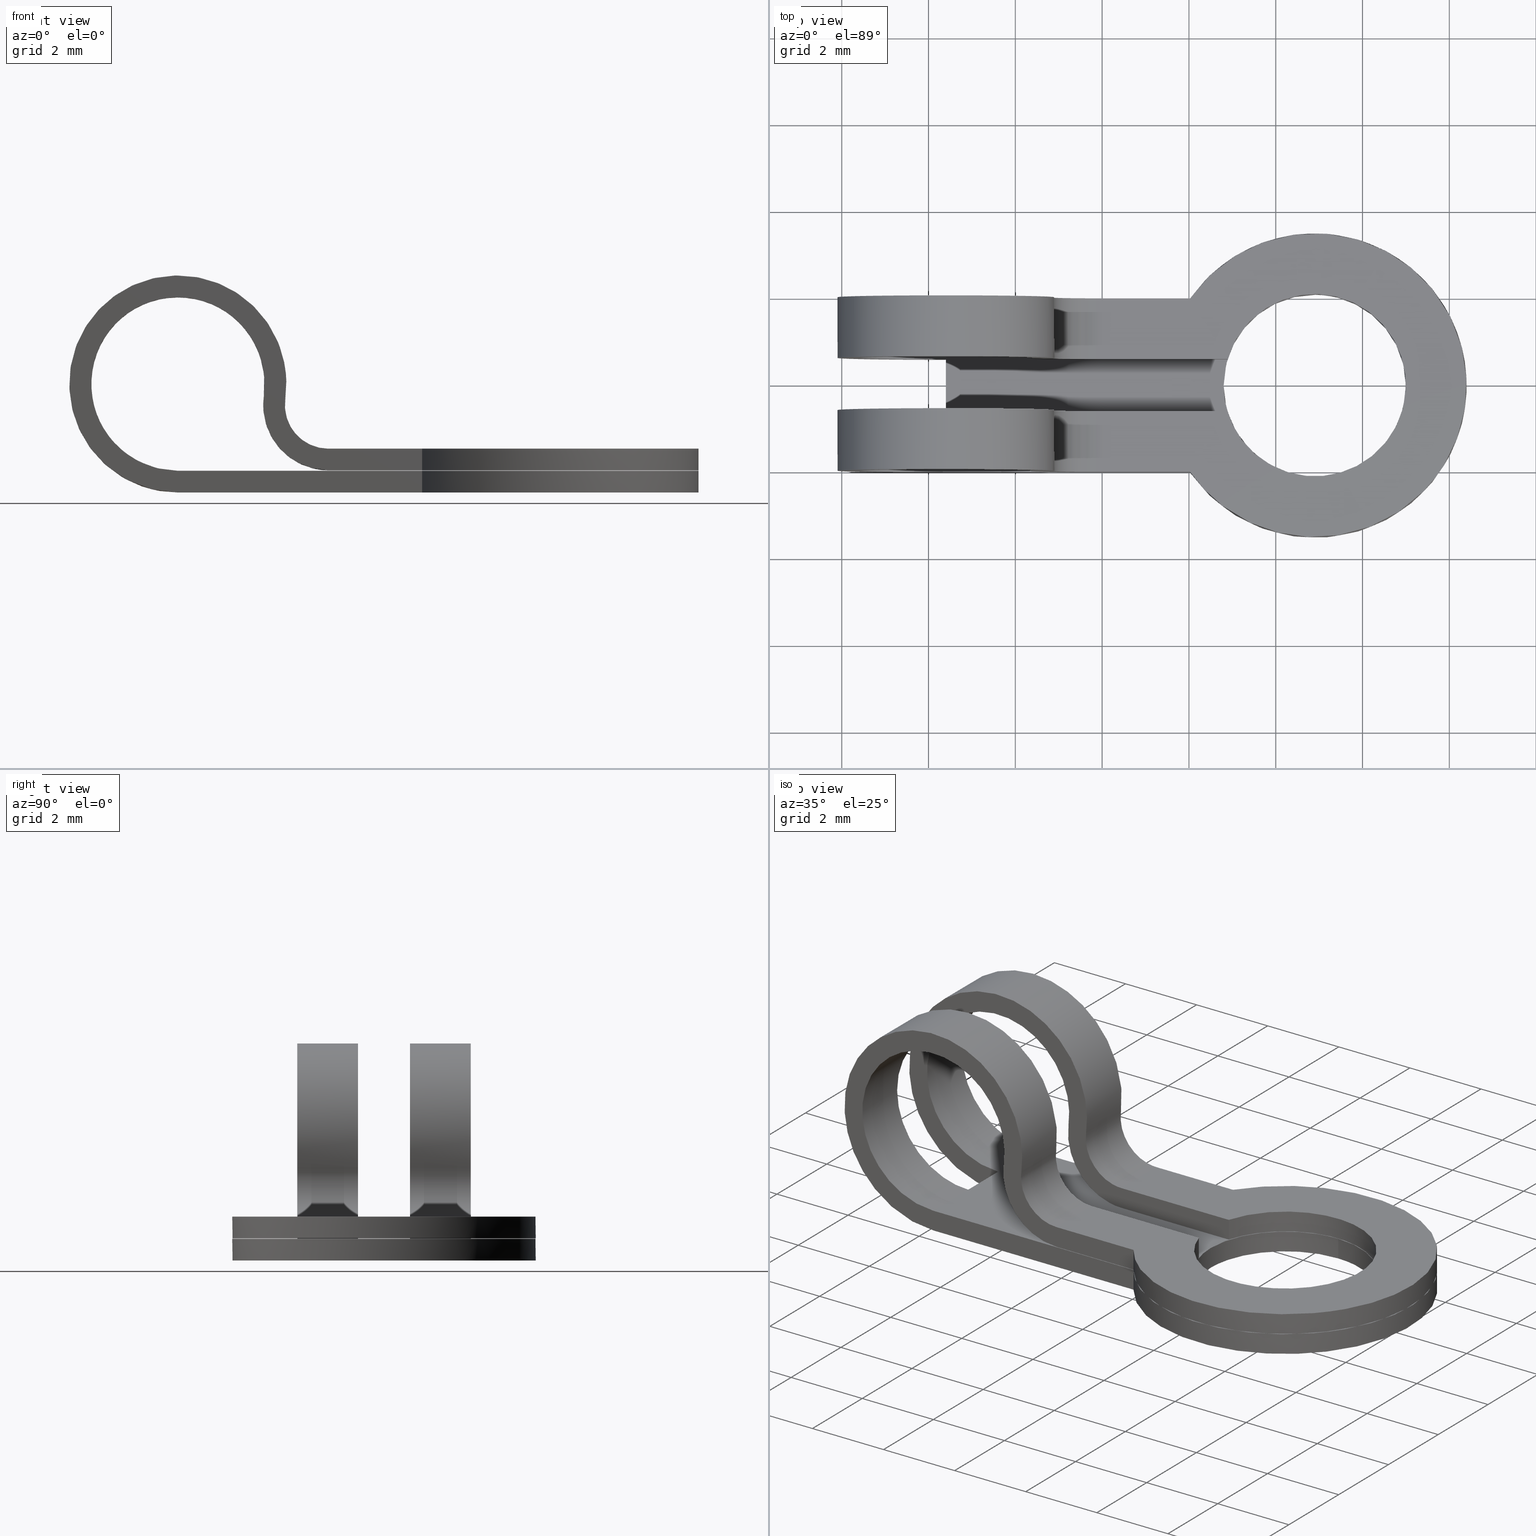
[diagram: canonical four-view strip — front | top / right | iso, engineering-drawing reading convention]
A machine part, canonical four-view strip (front | top / right | iso — engineering-drawing reading convention). The complete STEP part file that produces these views, byte-faithful:
ISO-10303-21;
HEADER;
/****************************************************************
 * Generated by software with PDE/Lib inside                    *
 * PDElib Version 4.4.1-0003, patched  Thursday August 19 11:58 *
 * International Technegroup Inc. (www.iti-oh.com)              *
 ****************************************************************/
FILE_DESCRIPTION((''),'2;1');
FILE_NAME('','2005-12-14T14:31:10',(''),(''),'','CADfix','');
FILE_SCHEMA(('AUTOMOTIVE_DESIGN'));
ENDSEC;
DATA;
#5=APPLICATION_CONTEXT('automotive design');
#6=APPLICATION_PROTOCOL_DEFINITION('Draft International Standard','automotive_design',1998,#5);
#7=PRODUCT_CONTEXT('None',#5,'mechanical');
#8=PRODUCT('terminal','','None',(#7));
#9=PRODUCT_RELATED_PRODUCT_CATEGORY('part','description',(#8));
#10=PRODUCT_DEFINITION_FORMATION('None','None',#8);
#11=PRODUCT_DEFINITION_CONTEXT('part definition',#5,'design');
#12=PRODUCT_DEFINITION('None','None',#10,#11);
#18=(NAMED_UNIT(*)PLANE_ANGLE_UNIT()SI_UNIT($,.RADIAN.));
#19=DIMENSIONAL_EXPONENTS(0.0,0.0,0.0,0.0,0.0,0.0,0.0);
#20=PLANE_ANGLE_MEASURE_WITH_UNIT(PLANE_ANGLE_MEASURE(0.017453292500000),#18);
#24=(CONVERSION_BASED_UNIT('DEGREE',#20)NAMED_UNIT(#19)PLANE_ANGLE_UNIT());
#28=(NAMED_UNIT(*)SI_UNIT($,.STERADIAN.)SOLID_ANGLE_UNIT());
#32=(LENGTH_UNIT()NAMED_UNIT(*)SI_UNIT(.MILLI.,.METRE.));
#34=UNCERTAINTY_MEASURE_WITH_UNIT(LENGTH_MEASURE(0.001000000000000),#32,'DISTANCE_ACCURACY_VALUE','');
#36=(GEOMETRIC_REPRESENTATION_CONTEXT(3)GLOBAL_UNCERTAINTY_ASSIGNED_CONTEXT((#34))GLOBAL_UNIT_ASSIGNED_CONTEXT((#24,#28,#32))REPRESENTATION_CONTEXT('None','None'));
#37=AXIS2_PLACEMENT_3D('',#38,#39,#40);
#38=CARTESIAN_POINT('',(0.0,0.0,0.0));
#39=DIRECTION('',(0.0,0.0,1.0));
#40=DIRECTION('',(1.0,0.0,0.0));
#41=ADVANCED_BREP_SHAPE_REPRESENTATION('',(#37,#1250),#36);
#42=PRODUCT_DEFINITION_SHAPE('','',#12);
#43=SHAPE_DEFINITION_REPRESENTATION(#42,#41);
#44=CARTESIAN_POINT('',(8.668753817525078,-2.087439685561014,-1.987500000000002));
#45=CARTESIAN_POINT('',(8.654078733129522,-2.085603899074492,-1.987500000000001));
#46=CARTESIAN_POINT('',(6.783761055944867,-1.851635642079764,-1.987500000000001));
#47=CARTESIAN_POINT('',(6.800079961565242,0.018325724546585,-1.987500000000001));
#48=CARTESIAN_POINT('',(6.818405686111827,2.118245762981344,-1.987500000000001));
#49=CARTESIAN_POINT('',(8.932539306322060,2.099795998385771,-1.987500000000001));
#50=CARTESIAN_POINT('',(8.946673410870188,2.099672651924039,-1.987500000000002));
#51=CARTESIAN_POINT('',(8.668753817525078,-2.087439685561014,-2.512812499999944));
#52=CARTESIAN_POINT('',(8.654078733129522,-2.085603899074492,-2.512812499999945));
#53=CARTESIAN_POINT('',(6.783761055944867,-1.851635642079764,-2.512812499999944));
#54=CARTESIAN_POINT('',(6.800079961565242,0.018325724546585,-2.512812499999944));
#55=CARTESIAN_POINT('',(6.818405686111827,2.118245762981344,-2.512812499999944));
#56=CARTESIAN_POINT('',(8.932539306322060,2.099795998385771,-2.512812499999944));
#57=CARTESIAN_POINT('',(8.946673410870188,2.099672651924039,-2.512812499999945));
#65=(BOUNDED_SURFACE()B_SPLINE_SURFACE(2,1,((#44,#51),(#45,#52),(#46,#53),(#47,#54),(#48,#55),(#49,#56),(#50,#57)),.UNSPECIFIED.,.F.,.F.,.U.)B_SPLINE_SURFACE_WITH_KNOTS((3,1,2,1,3),(2,2),(0.0,0.033405781068067,3.234448191087344,6.713842115021341,6.747241517452765),(0.0,1.0),.UNSPECIFIED.)GEOMETRIC_REPRESENTATION_ITEM()RATIONAL_B_SPLINE_SURFACE(((0.961610409055472,0.961610409055472),(0.959248263623066,0.959248263623066),(0.730538238691624,0.730538238691624),(1.0,1.0),(0.707106781186548,0.707106781186548),(1.002811540946052,1.002811540946052),(1.005623081892104,1.005623081892104)))REPRESENTATION_ITEM('')SURFACE());
#66=CARTESIAN_POINT('',(6.800000000000001,0.0,-2.499999999999945));
#67=VERTEX_POINT('',#66);
#68=CARTESIAN_POINT('',(8.639334378567069,-2.083759447199387,-2.499999999999880));
#69=VERTEX_POINT('',#68);
#70=CARTESIAN_POINT('',(6.800000000000001,0.0,-2.499999999999945));
#71=CARTESIAN_POINT('',(6.800000000000001,-1.853669913855515,-2.499999999999945));
#72=CARTESIAN_POINT('',(8.639334378567069,-2.083759447199387,-2.499999999999880));
#80=(BOUNDED_CURVE()B_SPLINE_CURVE(2,(#70,#71,#72),.UNSPECIFIED.,.F.,.U.)B_SPLINE_CURVE_WITH_KNOTS((3,3),(0.0,0.228526328635385),.UNSPECIFIED.)CURVE()GEOMETRIC_REPRESENTATION_ITEM()RATIONAL_B_SPLINE_CURVE((1.0,0.732264752089445,0.954005930189161))REPRESENTATION_ITEM(''));
#81=EDGE_CURVE('',#67,#69,#80,.T.);
#82=ORIENTED_EDGE('',*,*,#81,.F.);
#83=CARTESIAN_POINT('',(8.918323349573484,2.099920059158150,-2.500000000000060));
#84=VERTEX_POINT('',#83);
#85=CARTESIAN_POINT('',(8.918323349573484,2.099920059158149,-2.500000000000060));
#86=CARTESIAN_POINT('',(8.909161849169111,2.100000000000000,-2.499999999999945));
#87=CARTESIAN_POINT('',(8.900000000000000,2.100000000000000,-2.499999999999945));
#88=CARTESIAN_POINT('',(6.800000000000002,2.100000000000000,-2.499999999999945));
#89=CARTESIAN_POINT('',(6.800000000000001,0.0,-2.499999999999945));
#97=(BOUNDED_CURVE()B_SPLINE_CURVE(2,(#85,#86,#87,#88,#89),.UNSPECIFIED.,.F.,.U.)B_SPLINE_CURVE_WITH_KNOTS((3,2,3),(0.748460304879482,0.750000000000000,1.0),.UNSPECIFIED.)CURVE()GEOMETRIC_REPRESENTATION_ITEM()RATIONAL_B_SPLINE_CURVE((0.996414489138873,0.998196134960640,1.0,0.707106781186548,1.0))REPRESENTATION_ITEM(''));
#98=EDGE_CURVE('',#84,#67,#97,.T.);
#99=ORIENTED_EDGE('',*,*,#98,.F.);
#100=CARTESIAN_POINT('',(8.918322967237609,2.099920062493809,-2.0));
#101=VERTEX_POINT('',#100);
#102=CARTESIAN_POINT('',(8.918322967237609,2.099920062493809,-2.0));
#103=CARTESIAN_POINT('',(8.918323349573484,2.099920059158150,-2.500000000000060));
#104=QUASI_UNIFORM_CURVE('',1,(#102,#103),.UNSPECIFIED.,.F.,.U.);
#105=EDGE_CURVE('',#101,#84,#104,.T.);
#106=ORIENTED_EDGE('',*,*,#105,.F.);
#107=CARTESIAN_POINT('',(6.800000000000001,0.0,-2.0));
#108=VERTEX_POINT('',#107);
#109=CARTESIAN_POINT('',(6.800000000000001,0.0,-2.0));
#110=CARTESIAN_POINT('',(6.800000000000002,2.100000000000000,-2.000000000000000));
#111=CARTESIAN_POINT('',(8.900000000000000,2.100000000000000,-2.0));
#112=CARTESIAN_POINT('',(8.909161657990259,2.100000000000000,-2.000000000000000));
#113=CARTESIAN_POINT('',(8.918322967237609,2.099920062493809,-2.000000000000000));
#121=(BOUNDED_CURVE()B_SPLINE_CURVE(2,(#109,#110,#111,#112,#113),.UNSPECIFIED.,.F.,.U.)B_SPLINE_CURVE_WITH_KNOTS((3,2,3),(0.500000000000000,0.750000000000000,0.751539663049899),.UNSPECIFIED.)CURVE()GEOMETRIC_REPRESENTATION_ITEM()RATIONAL_B_SPLINE_CURVE((1.0,0.707106781186548,1.0,0.998196172533708,0.996414563359401))REPRESENTATION_ITEM(''));
#122=EDGE_CURVE('',#108,#101,#121,.T.);
#123=ORIENTED_EDGE('',*,*,#122,.F.);
#124=CARTESIAN_POINT('',(8.639332350871976,-2.083759193548216,-2.0));
#125=VERTEX_POINT('',#124);
#126=CARTESIAN_POINT('',(8.639332350871976,-2.083759193548216,-2.000000000000000));
#127=CARTESIAN_POINT('',(6.800000000000002,-1.853668096001657,-2.000000000000000));
#128=CARTESIAN_POINT('',(6.800000000000001,0.0,-2.0));
#136=(BOUNDED_CURVE()B_SPLINE_CURVE(2,(#126,#127,#128),.UNSPECIFIED.,.F.,.U.)B_SPLINE_CURVE_WITH_KNOTS((3,3),(0.271473835473105,0.500000000000000),.UNSPECIFIED.)CURVE()GEOMETRIC_REPRESENTATION_ITEM()RATIONAL_B_SPLINE_CURVE((0.954005611717487,0.732264944354501,1.0))REPRESENTATION_ITEM(''));
#137=EDGE_CURVE('',#125,#108,#136,.T.);
#138=ORIENTED_EDGE('',*,*,#137,.F.);
#139=CARTESIAN_POINT('',(8.639332350871976,-2.083759193548216,-2.0));
#140=CARTESIAN_POINT('',(8.639334378567069,-2.083759447199387,-2.499999999999880));
#141=QUASI_UNIFORM_CURVE('',1,(#139,#140),.UNSPECIFIED.,.F.,.U.);
#142=EDGE_CURVE('',#125,#69,#141,.T.);
#143=ORIENTED_EDGE('',*,*,#142,.T.);
#144=EDGE_LOOP('',(#82,#99,#106,#123,#138,#143));
#145=FACE_OUTER_BOUND('',#144,.T.);
#146=ADVANCED_FACE('',(#145),#65,.F.);
#147=CARTESIAN_POINT('',(8.918325724546586,2.099920038434759,-1.987500000000001));
#148=CARTESIAN_POINT('',(11.018245762981346,2.081594313888175,-1.987500000000001));
#149=CARTESIAN_POINT('',(10.999920038434761,-0.018325724546585,-1.987500000000001));
#150=CARTESIAN_POINT('',(10.981594313888174,-2.118245762981344,-1.987500000000001));
#151=CARTESIAN_POINT('',(8.881674275453415,-2.099920038434759,-1.987500000000001));
#152=CARTESIAN_POINT('',(8.760034666187833,-2.098858505646578,-1.987500000000001));
#153=CARTESIAN_POINT('',(8.639331195632357,-2.083759049033631,-1.987500000000002));
#154=CARTESIAN_POINT('',(8.918325724546586,2.099920038434759,-2.512812499999944));
#155=CARTESIAN_POINT('',(11.018245762981346,2.081594313888175,-2.512812499999944));
#156=CARTESIAN_POINT('',(10.999920038434761,-0.018325724546585,-2.512812499999944));
#157=CARTESIAN_POINT('',(10.981594313888174,-2.118245762981344,-2.512812499999944));
#158=CARTESIAN_POINT('',(8.881674275453415,-2.099920038434759,-2.512812499999944));
#159=CARTESIAN_POINT('',(8.760034666187833,-2.098858505646578,-2.512812499999944));
#160=CARTESIAN_POINT('',(8.639331195632357,-2.083759049033631,-2.512812499999944));
#168=(BOUNDED_SURFACE()B_SPLINE_SURFACE(2,1,((#147,#154),(#148,#155),(#149,#156),(#150,#157),(#151,#158),(#152,#159),(#153,#160)),.UNSPECIFIED.,.F.,.F.,.U.)B_SPLINE_SURFACE_WITH_KNOTS((3,2,2,3),(2,2),(0.0,3.479393923933999,6.958787847867998,7.237139361782718),(0.0,1.0),.UNSPECIFIED.)GEOMETRIC_REPRESENTATION_ITEM()RATIONAL_B_SPLINE_SURFACE(((1.0,1.0),(0.707106781186548,0.707106781186548),(1.0,1.0),(0.707106781186548,0.707106781186548),(1.0,1.0),(0.976568542494924,0.976568542494924),(0.956886118190660,0.956886118190660)))REPRESENTATION_ITEM('')SURFACE());
#169=CARTESIAN_POINT('',(11.0,0.0,-2.499999999999945));
#170=VERTEX_POINT('',#169);
#171=CARTESIAN_POINT('',(8.639334378567069,-2.083759447199386,-2.499999999999881));
#172=CARTESIAN_POINT('',(8.769161262276706,-2.100000000000000,-2.499999999999945));
#173=CARTESIAN_POINT('',(8.900000000000000,-2.100000000000000,-2.499999999999945));
#174=CARTESIAN_POINT('',(11.0,-2.100000000000000,-2.499999999999945));
#175=CARTESIAN_POINT('',(11.0,0.0,-2.499999999999945));
#183=(BOUNDED_CURVE()B_SPLINE_CURVE(2,(#171,#172,#173,#174,#175),.UNSPECIFIED.,.F.,.U.)B_SPLINE_CURVE_WITH_KNOTS((3,2,3),(0.228526328635385,0.250000000000000,0.500000000000000),.UNSPECIFIED.)CURVE()GEOMETRIC_REPRESENTATION_ITEM()RATIONAL_B_SPLINE_CURVE((0.954005930189160,0.974842029097103,1.0,0.707106781186548,1.0))REPRESENTATION_ITEM(''));
#184=EDGE_CURVE('',#69,#170,#183,.T.);
#185=ORIENTED_EDGE('',*,*,#184,.F.);
#186=ORIENTED_EDGE('',*,*,#142,.F.);
#187=CARTESIAN_POINT('',(11.0,0.0,-2.0));
#188=VERTEX_POINT('',#187);
#189=CARTESIAN_POINT('',(11.0,0.0,-2.0));
#190=CARTESIAN_POINT('',(11.0,-2.100000000000000,-2.000000000000000));
#191=CARTESIAN_POINT('',(8.900000000000000,-2.100000000000000,-2.0));
#192=CARTESIAN_POINT('',(8.769160236561165,-2.100000000000000,-2.000000000000000));
#193=CARTESIAN_POINT('',(8.639332350871976,-2.083759193548217,-2.000000000000000));
#201=(BOUNDED_CURVE()B_SPLINE_CURVE(2,(#189,#190,#191,#192,#193),.UNSPECIFIED.,.F.,.U.)B_SPLINE_CURVE_WITH_KNOTS((3,2,3),(0.0,0.250000000000000,0.271473835473105),.UNSPECIFIED.)CURVE()GEOMETRIC_REPRESENTATION_ITEM()RATIONAL_B_SPLINE_CURVE((1.0,0.707106781186548,1.0,0.974841836832047,0.954005611717487))REPRESENTATION_ITEM(''));
#202=EDGE_CURVE('',#188,#125,#201,.T.);
#203=ORIENTED_EDGE('',*,*,#202,.F.);
#204=CARTESIAN_POINT('',(8.918322967237609,2.099920062493809,-2.000000000000000));
#205=CARTESIAN_POINT('',(11.000000000000002,2.081756275810669,-2.0));
#206=CARTESIAN_POINT('',(11.0,0.0,-2.0));
#214=(BOUNDED_CURVE()B_SPLINE_CURVE(2,(#204,#205,#206),.UNSPECIFIED.,.F.,.U.)B_SPLINE_CURVE_WITH_KNOTS((3,3),(0.751539663049899,1.0),.UNSPECIFIED.)CURVE()GEOMETRIC_REPRESENTATION_ITEM()RATIONAL_B_SPLINE_CURVE((0.996414563359401,0.708910608652840,1.0))REPRESENTATION_ITEM(''));
#215=EDGE_CURVE('',#101,#188,#214,.T.);
#216=ORIENTED_EDGE('',*,*,#215,.F.);
#217=ORIENTED_EDGE('',*,*,#105,.T.);
#218=CARTESIAN_POINT('',(11.0,0.0,-2.499999999999945));
#219=CARTESIAN_POINT('',(11.000000000000002,2.081755896767513,-2.499999999999945));
#220=CARTESIAN_POINT('',(8.918323349573484,2.099920059158149,-2.500000000000060));
#228=(BOUNDED_CURVE()B_SPLINE_CURVE(2,(#218,#219,#220),.UNSPECIFIED.,.F.,.U.)B_SPLINE_CURVE_WITH_KNOTS((3,3),(0.500000000000000,0.748460304879482),.UNSPECIFIED.)CURVE()GEOMETRIC_REPRESENTATION_ITEM()RATIONAL_B_SPLINE_CURVE((1.0,0.708910646225908,0.996414489138873))REPRESENTATION_ITEM(''));
#229=EDGE_CURVE('',#170,#84,#228,.T.);
#230=ORIENTED_EDGE('',*,*,#229,.F.);
#231=EDGE_LOOP('',(#185,#186,#203,#216,#217,#230));
#232=FACE_OUTER_BOUND('',#231,.T.);
#233=ADVANCED_FACE('',(#232),#168,.F.);
#234=CARTESIAN_POINT('',(-2.546051238425635,0.600000000000009,2.743662046927381));
#235=CARTESIAN_POINT('',(-2.546051238425635,0.600000000000009,-2.749460498458958));
#236=CARTESIAN_POINT('',(7.336329770947301,0.600000000000009,2.743662046927381));
#237=CARTESIAN_POINT('',(7.336329770947301,0.600000000000009,-2.749460498458958));
#238=B_SPLINE_SURFACE_WITH_KNOTS('',1,1,((#234,#236),(#235,#237)),.UNSPECIFIED.,.F.,.F.,.U.,(2,2),(2,2),(0.0,5.493122545386338),(0.0,9.882381009372935),.UNSPECIFIED.);
#239=CARTESIAN_POINT('',(0.400000000000006,0.600000000000045,-2.0));
#240=VERTEX_POINT('',#239);
#241=CARTESIAN_POINT('',(0.400000000000005,0.600000000000045,-2.500000000000000));
#242=VERTEX_POINT('',#241);
#243=CARTESIAN_POINT('',(0.400000000000006,0.600000000000045,-2.0));
#244=CARTESIAN_POINT('',(0.400000000000005,0.600000000000045,-2.500000000000000));
#245=QUASI_UNIFORM_CURVE('',1,(#243,#244),.UNSPECIFIED.,.F.,.U.);
#246=EDGE_CURVE('',#240,#242,#245,.T.);
#247=ORIENTED_EDGE('',*,*,#246,.F.);
#248=CARTESIAN_POINT('',(2.380303007117855,0.600000000000045,-0.280000000000000));
#249=VERTEX_POINT('',#248);
#250=CARTESIAN_POINT('',(0.400000000000006,0.600000000000045,-2.0));
#251=CARTESIAN_POINT('',(-0.987758630280445,0.600000000000045,-2.000000000000000));
#252=CARTESIAN_POINT('',(-1.473490562307195,0.600000000000045,-0.700023651704605));
#253=CARTESIAN_POINT('',(-1.959222494333946,0.600000000000045,0.599952696590790));
#254=CARTESIAN_POINT('',(-0.911487704860395,0.600000000000045,1.509966887054150));
#255=CARTESIAN_POINT('',(0.136247084613156,0.600000000000045,2.419981077517510));
#256=CARTESIAN_POINT('',(1.355418149985137,0.600000000000045,1.757036185933286));
#257=CARTESIAN_POINT('',(2.574589215357118,0.600000000000045,1.094091294349062));
#258=CARTESIAN_POINT('',(2.380303007117856,0.600000000000045,-0.280000000000000));
#266=(BOUNDED_CURVE()B_SPLINE_CURVE(2,(#250,#251,#252,#253,#254,#255,#256,#257,#258),.UNSPECIFIED.,.F.,.U.)B_SPLINE_CURVE_WITH_KNOTS((3,2,2,2,3),(0.0,0.250000000000000,0.500000000000000,0.750000000000000,1.0),.UNSPECIFIED.)CURVE()GEOMETRIC_REPRESENTATION_ITEM()RATIONAL_B_SPLINE_CURVE((1.0,0.821587434742129,1.0,0.821587434742129,1.0,0.821587434742129,1.0,0.821587434742129,1.0))REPRESENTATION_ITEM(''));
#267=EDGE_CURVE('',#240,#249,#266,.T.);
#268=ORIENTED_EDGE('',*,*,#267,.T.);
#269=CARTESIAN_POINT('',(3.865530262456245,0.600000000000045,-1.990000000000000));
#270=VERTEX_POINT('',#269);
#271=CARTESIAN_POINT('',(2.380303007117858,0.600000000000045,-0.280000000000000));
#272=CARTESIAN_POINT('',(2.284547541737157,0.600000000000045,-0.957231557290600));
#273=CARTESIAN_POINT('',(2.733055097165632,0.600000000000045,-1.473615778645300));
#274=CARTESIAN_POINT('',(3.181562652594107,0.600000000000045,-1.990000000000000));
#275=CARTESIAN_POINT('',(3.865530262456245,0.600000000000045,-1.990000000000000));
#283=(BOUNDED_CURVE()B_SPLINE_CURVE(2,(#271,#272,#273,#274,#275),.UNSPECIFIED.,.F.,.U.)B_SPLINE_CURVE_WITH_KNOTS((3,2,3),(0.0,0.500000000000000,1.0),.UNSPECIFIED.)CURVE()GEOMETRIC_REPRESENTATION_ITEM()RATIONAL_B_SPLINE_CURVE((1.0,0.909874676103858,1.0,0.909874676103858,1.0))REPRESENTATION_ITEM(''));
#284=EDGE_CURVE('',#249,#270,#283,.T.);
#285=ORIENTED_EDGE('',*,*,#284,.T.);
#286=CARTESIAN_POINT('',(6.887538820250209,0.600000000000045,-1.990000000000045));
#287=VERTEX_POINT('',#286);
#288=CARTESIAN_POINT('',(3.865530262456245,0.600000000000045,-1.990000000000000));
#289=CARTESIAN_POINT('',(6.887538820250209,0.600000000000045,-1.990000000000045));
#290=QUASI_UNIFORM_CURVE('',1,(#288,#289),.UNSPECIFIED.,.F.,.U.);
#291=EDGE_CURVE('',#270,#287,#290,.T.);
#292=ORIENTED_EDGE('',*,*,#291,.T.);
#293=CARTESIAN_POINT('',(6.887538820250209,0.600000000000045,-1.490000000000000));
#294=VERTEX_POINT('',#293);
#295=CARTESIAN_POINT('',(6.887538820250209,0.600000000000045,-1.990000000000045));
#296=CARTESIAN_POINT('',(6.887538820250209,0.600000000000045,-1.490000000000000));
#297=QUASI_UNIFORM_CURVE('',1,(#295,#296),.UNSPECIFIED.,.F.,.U.);
#298=EDGE_CURVE('',#287,#294,#297,.T.);
#299=ORIENTED_EDGE('',*,*,#298,.T.);
#300=CARTESIAN_POINT('',(3.865530262456245,0.600000000000045,-1.490000000000000));
#301=VERTEX_POINT('',#300);
#302=CARTESIAN_POINT('',(6.887538820250209,0.600000000000045,-1.490000000000000));
#303=CARTESIAN_POINT('',(3.865530262456245,0.600000000000045,-1.490000000000000));
#304=QUASI_UNIFORM_CURVE('',1,(#302,#303),.UNSPECIFIED.,.F.,.U.);
#305=EDGE_CURVE('',#294,#301,#304,.T.);
#306=ORIENTED_EDGE('',*,*,#305,.T.);
#307=CARTESIAN_POINT('',(2.875378758897320,0.600000000000045,-0.350000000000000));
#308=VERTEX_POINT('',#307);
#309=CARTESIAN_POINT('',(2.875378758897320,0.600000000000045,-0.350000000000000));
#310=CARTESIAN_POINT('',(2.811541781976854,0.600000000000045,-0.801487704860400));
#311=CARTESIAN_POINT('',(3.110546818929170,0.600000000000045,-1.145743852430200));
#312=CARTESIAN_POINT('',(3.409551855881486,0.600000000000045,-1.490000000000001));
#313=CARTESIAN_POINT('',(3.865530262456245,0.600000000000045,-1.490000000000000));
#321=(BOUNDED_CURVE()B_SPLINE_CURVE(2,(#309,#310,#311,#312,#313),.UNSPECIFIED.,.F.,.U.)B_SPLINE_CURVE_WITH_KNOTS((3,2,3),(0.0,0.500000000000000,1.0),.UNSPECIFIED.)CURVE()GEOMETRIC_REPRESENTATION_ITEM()RATIONAL_B_SPLINE_CURVE((1.0,0.909874676103857,1.0,0.909874676103857,1.0))REPRESENTATION_ITEM(''));
#322=EDGE_CURVE('',#308,#301,#321,.T.);
#323=ORIENTED_EDGE('',*,*,#322,.F.);
#324=CARTESIAN_POINT('',(0.400000000000006,0.600000000000045,-2.500000000000000));
#325=CARTESIAN_POINT('',(-1.334698287850557,0.600000000000045,-2.500000000000000));
#326=CARTESIAN_POINT('',(-1.941863202883995,0.600000000000045,-0.875029564630756));
#327=CARTESIAN_POINT('',(-2.549028117917433,0.600000000000045,0.749940870738488));
#328=CARTESIAN_POINT('',(-1.239359631075495,0.600000000000045,1.887458608817687));
#329=CARTESIAN_POINT('',(0.070308855766444,0.600000000000045,3.024976346896888));
#330=CARTESIAN_POINT('',(1.594272687481420,0.600000000000045,2.196295232416607));
#331=CARTESIAN_POINT('',(3.118236519196397,0.600000000000045,1.367614117936327));
#332=CARTESIAN_POINT('',(2.875378758897318,0.600000000000045,-0.350000000000000));
#340=(BOUNDED_CURVE()B_SPLINE_CURVE(2,(#324,#325,#326,#327,#328,#329,#330,#331,#332),.UNSPECIFIED.,.F.,.U.)B_SPLINE_CURVE_WITH_KNOTS((3,2,2,2,3),(0.0,0.250000000000000,0.500000000000000,0.750000000000000,1.0),.UNSPECIFIED.)CURVE()GEOMETRIC_REPRESENTATION_ITEM()RATIONAL_B_SPLINE_CURVE((1.0,0.821587434742129,1.0,0.821587434742129,1.0,0.821587434742129,1.0,0.821587434742129,1.0))REPRESENTATION_ITEM(''));
#341=EDGE_CURVE('',#242,#308,#340,.T.);
#342=ORIENTED_EDGE('',*,*,#341,.F.);
#343=EDGE_LOOP('',(#247,#268,#285,#292,#299,#306,#323,#342));
#344=FACE_OUTER_BOUND('',#343,.T.);
#345=ADVANCED_FACE('',(#344),#238,.T.);
#346=CARTESIAN_POINT('',(0.400000000000006,-0.659940031468394,-2.524974999030903));
#347=CARTESIAN_POINT('',(0.400000000000006,-0.659940031468394,-1.975024987558052));
#348=CARTESIAN_POINT('',(0.400000000000006,0.659940031468439,-2.524974999030903));
#349=CARTESIAN_POINT('',(0.400000000000006,0.659940031468439,-1.975024987558052));
#350=B_SPLINE_SURFACE_WITH_KNOTS('',1,1,((#346,#348),(#347,#349)),.UNSPECIFIED.,.F.,.F.,.U.,(2,2),(2,2),(0.041708334948495,0.958291687403247),(0.041708311480284,0.958291688519716),.UNSPECIFIED.);
#351=CARTESIAN_POINT('',(0.400000000000006,-0.600000000000000,-2.0));
#352=VERTEX_POINT('',#351);
#353=CARTESIAN_POINT('',(0.400000000000006,-0.600000000000000,-2.0));
#354=CARTESIAN_POINT('',(0.400000000000006,0.600000000000045,-2.0));
#355=QUASI_UNIFORM_CURVE('',1,(#353,#354),.UNSPECIFIED.,.F.,.U.);
#356=EDGE_CURVE('',#352,#240,#355,.T.);
#357=ORIENTED_EDGE('',*,*,#356,.T.);
#358=ORIENTED_EDGE('',*,*,#246,.T.);
#359=CARTESIAN_POINT('',(0.400000000000006,-0.600000000000000,-2.499999999999945));
#360=VERTEX_POINT('',#359);
#361=CARTESIAN_POINT('',(0.400000000000006,-0.600000000000000,-2.499999999999945));
#362=CARTESIAN_POINT('',(0.400000000000005,0.600000000000045,-2.500000000000000));
#363=QUASI_UNIFORM_CURVE('',1,(#361,#362),.UNSPECIFIED.,.F.,.U.);
#364=EDGE_CURVE('',#360,#242,#363,.T.);
#365=ORIENTED_EDGE('',*,*,#364,.F.);
#366=CARTESIAN_POINT('',(0.400000000000006,-0.600000000000000,-2.0));
#367=CARTESIAN_POINT('',(0.400000000000006,-0.600000000000000,-2.499999999999945));
#368=QUASI_UNIFORM_CURVE('',1,(#366,#367),.UNSPECIFIED.,.F.,.U.);
#369=EDGE_CURVE('',#352,#360,#368,.T.);
#370=ORIENTED_EDGE('',*,*,#369,.F.);
#371=EDGE_LOOP('',(#357,#358,#365,#370));
#372=FACE_OUTER_BOUND('',#371,.T.);
#373=ADVANCED_FACE('',(#372),#350,.T.);
#374=CARTESIAN_POINT('',(-2.546051210234865,-0.600000000000000,-2.749460361022602));
#375=CARTESIAN_POINT('',(-2.546051210234865,-0.600000000000000,2.743662111008236));
#376=CARTESIAN_POINT('',(7.336329769606165,-0.600000000000000,-2.749460361022602));
#377=CARTESIAN_POINT('',(7.336329769606165,-0.600000000000000,2.743662111008236));
#378=B_SPLINE_SURFACE_WITH_KNOTS('',1,1,((#374,#376),(#375,#377)),.UNSPECIFIED.,.F.,.F.,.U.,(2,2),(2,2),(0.0,5.493122472030837),(0.0,9.882380979841029),.UNSPECIFIED.);
#379=ORIENTED_EDGE('',*,*,#369,.T.);
#380=CARTESIAN_POINT('',(2.875378758897320,-0.600000000000045,-0.350000000000000));
#381=VERTEX_POINT('',#380);
#382=CARTESIAN_POINT('',(2.875378758897318,-0.600000000000045,-0.350000000000001));
#383=CARTESIAN_POINT('',(3.118236519196397,-0.600000000000045,1.367614117936326));
#384=CARTESIAN_POINT('',(1.594272687481421,-0.600000000000045,2.196295232416607));
#385=CARTESIAN_POINT('',(0.070308855766445,-0.600000000000045,3.024976346896888));
#386=CARTESIAN_POINT('',(-1.239359631075494,-0.600000000000045,1.887458608817688));
#387=CARTESIAN_POINT('',(-2.549028117917432,-0.600000000000045,0.749940870738490));
#388=CARTESIAN_POINT('',(-1.941863202883996,-0.600000000000045,-0.875029564630753));
#389=CARTESIAN_POINT('',(-1.334698287850559,-0.600000000000045,-2.500000000000000));
#390=CARTESIAN_POINT('',(0.400000000000006,-0.600000000000000,-2.499999999999945));
#398=(BOUNDED_CURVE()B_SPLINE_CURVE(2,(#382,#383,#384,#385,#386,#387,#388,#389,#390),.UNSPECIFIED.,.F.,.U.)B_SPLINE_CURVE_WITH_KNOTS((3,2,2,2,3),(0.0,0.250000000000000,0.500000000000000,0.750000000000000,1.0),.UNSPECIFIED.)CURVE()GEOMETRIC_REPRESENTATION_ITEM()RATIONAL_B_SPLINE_CURVE((1.0,0.821587434742129,1.0,0.821587434742129,1.0,0.821587434742129,1.0,0.821587434742129,1.0))REPRESENTATION_ITEM(''));
#399=EDGE_CURVE('',#381,#360,#398,.T.);
#400=ORIENTED_EDGE('',*,*,#399,.F.);
#401=CARTESIAN_POINT('',(3.865530262456245,-0.600000000000045,-1.490000000000000));
#402=VERTEX_POINT('',#401);
#403=CARTESIAN_POINT('',(3.865530262456245,-0.600000000000045,-1.490000000000000));
#404=CARTESIAN_POINT('',(3.409551855881486,-0.600000000000045,-1.490000000000000));
#405=CARTESIAN_POINT('',(3.110546818929170,-0.600000000000045,-1.145743852430200));
#406=CARTESIAN_POINT('',(2.811541781976854,-0.600000000000045,-0.801487704860400));
#407=CARTESIAN_POINT('',(2.875378758897320,-0.600000000000045,-0.350000000000000));
#415=(BOUNDED_CURVE()B_SPLINE_CURVE(2,(#403,#404,#405,#406,#407),.UNSPECIFIED.,.F.,.U.)B_SPLINE_CURVE_WITH_KNOTS((3,2,3),(0.0,0.500000000000000,1.0),.UNSPECIFIED.)CURVE()GEOMETRIC_REPRESENTATION_ITEM()RATIONAL_B_SPLINE_CURVE((1.0,0.909874676103858,1.0,0.909874676103858,1.0))REPRESENTATION_ITEM(''));
#416=EDGE_CURVE('',#402,#381,#415,.T.);
#417=ORIENTED_EDGE('',*,*,#416,.F.);
#418=CARTESIAN_POINT('',(6.887538820250209,-0.600000000000045,-1.490000000000000));
#419=VERTEX_POINT('',#418);
#420=CARTESIAN_POINT('',(3.865530262456245,-0.600000000000045,-1.490000000000000));
#421=CARTESIAN_POINT('',(6.887538820250209,-0.600000000000045,-1.490000000000000));
#422=QUASI_UNIFORM_CURVE('',1,(#420,#421),.UNSPECIFIED.,.F.,.U.);
#423=EDGE_CURVE('',#402,#419,#422,.T.);
#424=ORIENTED_EDGE('',*,*,#423,.T.);
#425=CARTESIAN_POINT('',(6.887538820250209,-0.600000000000045,-1.990000000000045));
#426=VERTEX_POINT('',#425);
#427=CARTESIAN_POINT('',(6.887538820250209,-0.600000000000045,-1.490000000000000));
#428=CARTESIAN_POINT('',(6.887538820250209,-0.600000000000045,-1.990000000000045));
#429=QUASI_UNIFORM_CURVE('',1,(#427,#428),.UNSPECIFIED.,.F.,.U.);
#430=EDGE_CURVE('',#419,#426,#429,.T.);
#431=ORIENTED_EDGE('',*,*,#430,.T.);
#432=CARTESIAN_POINT('',(3.865530262456245,-0.600000000000045,-1.990000000000000));
#433=VERTEX_POINT('',#432);
#434=CARTESIAN_POINT('',(6.887538820250209,-0.600000000000045,-1.990000000000045));
#435=CARTESIAN_POINT('',(3.865530262456245,-0.600000000000045,-1.990000000000000));
#436=QUASI_UNIFORM_CURVE('',1,(#434,#435),.UNSPECIFIED.,.F.,.U.);
#437=EDGE_CURVE('',#426,#433,#436,.T.);
#438=ORIENTED_EDGE('',*,*,#437,.T.);
#439=CARTESIAN_POINT('',(2.380303007117855,-0.600000000000045,-0.280000000000000));
#440=VERTEX_POINT('',#439);
#441=CARTESIAN_POINT('',(3.865530262456245,-0.600000000000045,-1.990000000000000));
#442=CARTESIAN_POINT('',(3.181562652594107,-0.600000000000045,-1.990000000000000));
#443=CARTESIAN_POINT('',(2.733055097165632,-0.600000000000045,-1.473615778645300));
#444=CARTESIAN_POINT('',(2.284547541737158,-0.600000000000045,-0.957231557290600));
#445=CARTESIAN_POINT('',(2.380303007117858,-0.600000000000045,-0.280000000000000));
#453=(BOUNDED_CURVE()B_SPLINE_CURVE(2,(#441,#442,#443,#444,#445),.UNSPECIFIED.,.F.,.U.)B_SPLINE_CURVE_WITH_KNOTS((3,2,3),(0.0,0.500000000000000,1.0),.UNSPECIFIED.)CURVE()GEOMETRIC_REPRESENTATION_ITEM()RATIONAL_B_SPLINE_CURVE((1.0,0.909874676103858,1.0,0.909874676103858,1.0))REPRESENTATION_ITEM(''));
#454=EDGE_CURVE('',#433,#440,#453,.T.);
#455=ORIENTED_EDGE('',*,*,#454,.T.);
#456=CARTESIAN_POINT('',(2.380303007117856,-0.600000000000045,-0.280000000000001));
#457=CARTESIAN_POINT('',(2.574589215357118,-0.600000000000045,1.094091294349061));
#458=CARTESIAN_POINT('',(1.355418149985138,-0.600000000000045,1.757036185933286));
#459=CARTESIAN_POINT('',(0.136247084613157,-0.600000000000045,2.419981077517511));
#460=CARTESIAN_POINT('',(-0.911487704860394,-0.600000000000045,1.509966887054151));
#461=CARTESIAN_POINT('',(-1.959222494333944,-0.600000000000045,0.599952696590792));
#462=CARTESIAN_POINT('',(-1.473490562307196,-0.600000000000045,-0.700023651704603));
#463=CARTESIAN_POINT('',(-0.987758630280446,-0.600000000000045,-2.000000000000000));
#464=CARTESIAN_POINT('',(0.400000000000006,-0.600000000000000,-2.0));
#472=(BOUNDED_CURVE()B_SPLINE_CURVE(2,(#456,#457,#458,#459,#460,#461,#462,#463,#464),.UNSPECIFIED.,.F.,.U.)B_SPLINE_CURVE_WITH_KNOTS((3,2,2,2,3),(0.0,0.250000000000000,0.500000000000000,0.750000000000000,1.0),.UNSPECIFIED.)CURVE()GEOMETRIC_REPRESENTATION_ITEM()RATIONAL_B_SPLINE_CURVE((1.0,0.821587434742129,1.0,0.821587434742129,1.0,0.821587434742129,1.0,0.821587434742129,1.0))REPRESENTATION_ITEM(''));
#473=EDGE_CURVE('',#440,#352,#472,.T.);
#474=ORIENTED_EDGE('',*,*,#473,.T.);
#475=EDGE_LOOP('',(#379,#400,#417,#424,#431,#438,#455,#474));
#476=FACE_OUTER_BOUND('',#475,.T.);
#477=ADVANCED_FACE('',(#476),#378,.T.);
#478=CARTESIAN_POINT('',(6.872522271449439,-0.547114302711466,-1.477499999999999));
#479=CARTESIAN_POINT('',(6.872522271449439,-0.547114302711466,-2.002812500000046));
#480=CARTESIAN_POINT('',(7.354444304060431,-2.333004715691382,-1.477499999999999));
#481=CARTESIAN_POINT('',(7.354444304060431,-2.333004715691382,-2.002812500000046));
#482=CARTESIAN_POINT('',(9.186874497041405,-2.080313203089196,-1.477499999999999));
#483=CARTESIAN_POINT('',(9.186874497041405,-2.080313203089196,-2.002812500000046));
#484=CARTESIAN_POINT('',(11.019304690022382,-1.827621690487014,-1.477499999999999));
#485=CARTESIAN_POINT('',(11.019304690022382,-1.827621690487014,-2.002812500000046));
#486=CARTESIAN_POINT('',(10.999884260146530,0.022047539292441,-1.477499999999999));
#487=CARTESIAN_POINT('',(10.999884260146530,0.022047539292441,-2.002812500000046));
#488=CARTESIAN_POINT('',(10.980463830270683,1.871716769071897,-1.477499999999999));
#489=CARTESIAN_POINT('',(10.980463830270683,1.871716769071897,-2.002812500000046));
#490=CARTESIAN_POINT('',(9.143131960828690,2.085877956550577,-1.477499999999999));
#491=CARTESIAN_POINT('',(9.143131960828690,2.085877956550577,-2.002812500000046));
#492=CARTESIAN_POINT('',(7.305800091386694,2.300039144029257,-1.477499999999999));
#493=CARTESIAN_POINT('',(7.305800091386694,2.300039144029257,-2.002812500000046));
#494=CARTESIAN_POINT('',(6.861481745494572,0.504423756427228,-1.477499999999999));
#495=CARTESIAN_POINT('',(6.861481745494572,0.504423756427228,-2.002812500000046));
#503=(BOUNDED_SURFACE()B_SPLINE_SURFACE(1,2,((#478,#480,#482,#484,#486,#488,#490,#492,#494),(#479,#481,#483,#485,#487,#489,#491,#493,#495)),.UNSPECIFIED.,.F.,.F.,.U.)B_SPLINE_SURFACE_WITH_KNOTS((2,2),(3,2,2,2,3),(0.0,1.0),(0.0,3.172001409333480,6.344002818666960,9.516004228000440,12.688005637333919),.UNSPECIFIED.)GEOMETRIC_REPRESENTATION_ITEM()RATIONAL_B_SPLINE_SURFACE(((1.0,0.750399549951834,1.0,0.750399549951834,1.0,0.750399549951834,1.0,0.750399549951834,1.0),(1.0,0.750399549951834,1.0,0.750399549951834,1.0,0.750399549951834,1.0,0.750399549951834,1.0)))REPRESENTATION_ITEM('')SURFACE());
#504=ORIENTED_EDGE('',*,*,#298,.F.);
#505=CARTESIAN_POINT('',(6.887538820250203,-0.600000000000047,-1.990000000000045));
#506=CARTESIAN_POINT('',(7.406352245028296,-2.340153128164829,-1.990000000000045));
#507=CARTESIAN_POINT('',(9.203176122514147,-2.078000057444005,-1.990000000000045));
#508=CARTESIAN_POINT('',(11.0,-1.815846986723179,-1.990000000000045));
#509=CARTESIAN_POINT('',(11.0,0.0,-1.990000000000045));
#510=CARTESIAN_POINT('',(11.0,1.815846986723179,-1.990000000000045));
#511=CARTESIAN_POINT('',(9.203176122514149,2.078000057444005,-1.990000000000045));
#512=CARTESIAN_POINT('',(7.406352245028296,2.340153128164831,-1.990000000000045));
#513=CARTESIAN_POINT('',(6.887538820250203,0.600000000000048,-1.990000000000045));
#521=(BOUNDED_CURVE()B_SPLINE_CURVE(2,(#505,#506,#507,#508,#509,#510,#511,#512,#513),.UNSPECIFIED.,.F.,.U.)B_SPLINE_CURVE_WITH_KNOTS((3,2,2,2,3),(0.0,0.250000000000000,0.500000000000000,0.750000000000000,1.0),.UNSPECIFIED.)CURVE()GEOMETRIC_REPRESENTATION_ITEM()RATIONAL_B_SPLINE_CURVE((1.0,0.756428972921316,1.0,0.756428972921316,1.0,0.756428972921316,1.0,0.756428972921316,1.0))REPRESENTATION_ITEM(''));
#522=EDGE_CURVE('',#426,#287,#521,.T.);
#523=ORIENTED_EDGE('',*,*,#522,.F.);
#524=ORIENTED_EDGE('',*,*,#430,.F.);
#525=CARTESIAN_POINT('',(6.887538820250203,0.600000000000047,-1.490000000000000));
#526=CARTESIAN_POINT('',(7.406352245028294,2.340153128164829,-1.490000000000000));
#527=CARTESIAN_POINT('',(9.203176122514147,2.078000057444005,-1.490000000000000));
#528=CARTESIAN_POINT('',(11.000000000000002,1.815846986723179,-1.490000000000000));
#529=CARTESIAN_POINT('',(11.0,0.0,-1.490000000000000));
#530=CARTESIAN_POINT('',(11.000000000000002,-1.815846986723179,-1.490000000000000));
#531=CARTESIAN_POINT('',(9.203176122514149,-2.078000057444005,-1.490000000000000));
#532=CARTESIAN_POINT('',(7.406352245028296,-2.340153128164829,-1.490000000000000));
#533=CARTESIAN_POINT('',(6.887538820250203,-0.600000000000048,-1.490000000000000));
#541=(BOUNDED_CURVE()B_SPLINE_CURVE(2,(#525,#526,#527,#528,#529,#530,#531,#532,#533),.UNSPECIFIED.,.F.,.U.)B_SPLINE_CURVE_WITH_KNOTS((3,2,2,2,3),(0.0,0.250000000000000,0.500000000000000,0.750000000000000,1.0),.UNSPECIFIED.)CURVE()GEOMETRIC_REPRESENTATION_ITEM()RATIONAL_B_SPLINE_CURVE((1.0,0.756428972921316,1.0,0.756428972921316,1.0,0.756428972921316,1.0,0.756428972921316,1.0))REPRESENTATION_ITEM(''));
#542=EDGE_CURVE('',#294,#419,#541,.T.);
#543=ORIENTED_EDGE('',*,*,#542,.F.);
#544=EDGE_LOOP('',(#504,#523,#524,#543));
#545=FACE_OUTER_BOUND('',#544,.T.);
#546=ADVANCED_FACE('',(#545),#503,.F.);
#547=CARTESIAN_POINT('',(3.908315354965192,-0.565000000000040,-1.489084298675042));
#548=CARTESIAN_POINT('',(3.908315354965192,-2.035875000000230,-1.489084298675042));
#549=CARTESIAN_POINT('',(2.611393413171776,-0.565000000000040,-1.544624081784539));
#550=CARTESIAN_POINT('',(2.611393413171776,-2.035875000000230,-1.544624081784539));
#551=CARTESIAN_POINT('',(2.888596747972752,-0.565000000000040,-0.276456308267063));
#552=CARTESIAN_POINT('',(2.888596747972752,-2.035875000000230,-0.276456308267063));
#560=(BOUNDED_SURFACE()B_SPLINE_SURFACE(1,2,((#547,#549,#551),(#548,#550,#552)),.UNSPECIFIED.,.F.,.F.,.U.)B_SPLINE_SURFACE_WITH_KNOTS((2,2),(3,3),(0.0,1.0),(0.0,0.997607128758263),.UNSPECIFIED.)GEOMETRIC_REPRESENTATION_ITEM()RATIONAL_B_SPLINE_SURFACE(((1.0,0.609697612533904,0.998132113282902),(1.0,0.609697612533904,0.998132113282902)))REPRESENTATION_ITEM('')SURFACE());
#561=CARTESIAN_POINT('',(3.865530262456245,-2.000000000000225,-1.490000000000000));
#562=VERTEX_POINT('',#561);
#563=CARTESIAN_POINT('',(3.865530262456245,-0.600000000000045,-1.490000000000000));
#564=CARTESIAN_POINT('',(3.865530262456245,-2.000000000000225,-1.490000000000000));
#565=QUASI_UNIFORM_CURVE('',1,(#563,#564),.UNSPECIFIED.,.F.,.U.);
#566=EDGE_CURVE('',#402,#562,#565,.T.);
#567=ORIENTED_EDGE('',*,*,#566,.F.);
#568=ORIENTED_EDGE('',*,*,#416,.T.);
#569=CARTESIAN_POINT('',(2.875378758897320,-2.000000000000225,-0.350000000000000));
#570=VERTEX_POINT('',#569);
#571=CARTESIAN_POINT('',(2.875378758897320,-0.600000000000045,-0.350000000000000));
#572=CARTESIAN_POINT('',(2.875378758897320,-2.000000000000225,-0.350000000000000));
#573=QUASI_UNIFORM_CURVE('',1,(#571,#572),.UNSPECIFIED.,.F.,.U.);
#574=EDGE_CURVE('',#381,#570,#573,.T.);
#575=ORIENTED_EDGE('',*,*,#574,.T.);
#576=CARTESIAN_POINT('',(3.865530262456245,-2.000000000000225,-1.490000000000000));
#577=CARTESIAN_POINT('',(3.409551855881486,-2.000000000000225,-1.490000000000000));
#578=CARTESIAN_POINT('',(3.110546818929170,-2.000000000000225,-1.145743852430200));
#579=CARTESIAN_POINT('',(2.811541781976854,-2.000000000000225,-0.801487704860400));
#580=CARTESIAN_POINT('',(2.875378758897320,-2.000000000000225,-0.350000000000000));
#588=(BOUNDED_CURVE()B_SPLINE_CURVE(2,(#576,#577,#578,#579,#580),.UNSPECIFIED.,.F.,.U.)B_SPLINE_CURVE_WITH_KNOTS((3,2,3),(0.0,0.500000000000000,1.0),.UNSPECIFIED.)CURVE()GEOMETRIC_REPRESENTATION_ITEM()RATIONAL_B_SPLINE_CURVE((1.0,0.909874676103858,1.0,0.909874676103858,1.0))REPRESENTATION_ITEM(''));
#589=EDGE_CURVE('',#562,#570,#588,.T.);
#590=ORIENTED_EDGE('',*,*,#589,.F.);
#591=EDGE_LOOP('',(#567,#568,#575,#590));
#592=FACE_OUTER_BOUND('',#591,.T.);
#593=ADVANCED_FACE('',(#592),#560,.F.);
#594=CARTESIAN_POINT('',(-2.503103197258242,-2.000000000000200,2.743662046927380));
#595=CARTESIAN_POINT('',(-2.503103197258242,-2.000000000000200,-2.749460498458957));
#596=CARTESIAN_POINT('',(6.433560996228009,-2.000000000000200,2.743662046927380));
#597=CARTESIAN_POINT('',(6.433560996228009,-2.000000000000200,-2.749460498458957));
#598=B_SPLINE_SURFACE_WITH_KNOTS('',1,1,((#594,#596),(#595,#597)),.UNSPECIFIED.,.F.,.F.,.U.,(2,2),(2,2),(0.0,5.493122545386338),(0.0,8.936664193486251),.UNSPECIFIED.);
#599=ORIENTED_EDGE('',*,*,#589,.T.);
#600=CARTESIAN_POINT('',(0.400000000000005,-2.000000000000225,-2.500000000000000));
#601=VERTEX_POINT('',#600);
#602=CARTESIAN_POINT('',(0.400000000000006,-2.000000000000225,-2.500000000000000));
#603=CARTESIAN_POINT('',(-1.334698287850557,-2.000000000000225,-2.500000000000000));
#604=CARTESIAN_POINT('',(-1.941863202883995,-2.000000000000225,-0.875029564630756));
#605=CARTESIAN_POINT('',(-2.549028117917433,-2.000000000000225,0.749940870738488));
#606=CARTESIAN_POINT('',(-1.239359631075495,-2.000000000000225,1.887458608817687));
#607=CARTESIAN_POINT('',(0.070308855766444,-2.000000000000225,3.024976346896888));
#608=CARTESIAN_POINT('',(1.594272687481420,-2.000000000000225,2.196295232416607));
#609=CARTESIAN_POINT('',(3.118236519196397,-2.000000000000225,1.367614117936327));
#610=CARTESIAN_POINT('',(2.875378758897318,-2.000000000000225,-0.350000000000000));
#618=(BOUNDED_CURVE()B_SPLINE_CURVE(2,(#602,#603,#604,#605,#606,#607,#608,#609,#610),.UNSPECIFIED.,.F.,.U.)B_SPLINE_CURVE_WITH_KNOTS((3,2,2,2,3),(0.0,0.250000000000000,0.500000000000000,0.750000000000000,1.0),.UNSPECIFIED.)CURVE()GEOMETRIC_REPRESENTATION_ITEM()RATIONAL_B_SPLINE_CURVE((1.0,0.821587434742129,1.0,0.821587434742129,1.0,0.821587434742129,1.0,0.821587434742129,1.0))REPRESENTATION_ITEM(''));
#619=EDGE_CURVE('',#601,#570,#618,.T.);
#620=ORIENTED_EDGE('',*,*,#619,.F.);
#621=CARTESIAN_POINT('',(6.027718691425030,-2.000000021102710,-2.499999999999945));
#622=VERTEX_POINT('',#621);
#623=CARTESIAN_POINT('',(6.027718691425030,-2.000000021102710,-2.499999999999945));
#624=CARTESIAN_POINT('',(0.400000000000005,-2.000000000000225,-2.500000000000000));
#625=QUASI_UNIFORM_CURVE('',1,(#623,#624),.UNSPECIFIED.,.F.,.U.);
#626=EDGE_CURVE('',#622,#601,#625,.T.);
#627=ORIENTED_EDGE('',*,*,#626,.F.);
#628=CARTESIAN_POINT('',(6.027718691425030,-2.000000021102710,-2.0));
#629=VERTEX_POINT('',#628);
#630=CARTESIAN_POINT('',(6.027718691425030,-2.000000021102710,-2.0));
#631=CARTESIAN_POINT('',(6.027718691425030,-2.000000021102710,-2.499999999999945));
#632=QUASI_UNIFORM_CURVE('',1,(#630,#631),.UNSPECIFIED.,.F.,.U.);
#633=EDGE_CURVE('',#629,#622,#632,.T.);
#634=ORIENTED_EDGE('',*,*,#633,.F.);
#635=CARTESIAN_POINT('',(0.400000000000006,-2.000000000000225,-2.0));
#636=VERTEX_POINT('',#635);
#637=CARTESIAN_POINT('',(0.400000000000006,-2.000000000000225,-2.0));
#638=CARTESIAN_POINT('',(6.027718691425030,-2.000000021102710,-2.0));
#639=QUASI_UNIFORM_CURVE('',1,(#637,#638),.UNSPECIFIED.,.F.,.U.);
#640=EDGE_CURVE('',#636,#629,#639,.T.);
#641=ORIENTED_EDGE('',*,*,#640,.F.);
#642=CARTESIAN_POINT('',(2.380303007117855,-2.000000000000225,-0.280000000000000));
#643=VERTEX_POINT('',#642);
#644=CARTESIAN_POINT('',(0.400000000000006,-2.000000000000225,-2.0));
#645=CARTESIAN_POINT('',(-0.987758630280445,-2.000000000000225,-2.000000000000000));
#646=CARTESIAN_POINT('',(-1.473490562307195,-2.000000000000225,-0.700023651704605));
#647=CARTESIAN_POINT('',(-1.959222494333946,-2.000000000000225,0.599952696590790));
#648=CARTESIAN_POINT('',(-0.911487704860395,-2.000000000000225,1.509966887054150));
#649=CARTESIAN_POINT('',(0.136247084613156,-2.000000000000225,2.419981077517510));
#650=CARTESIAN_POINT('',(1.355418149985137,-2.000000000000225,1.757036185933286));
#651=CARTESIAN_POINT('',(2.574589215357118,-2.000000000000225,1.094091294349062));
#652=CARTESIAN_POINT('',(2.380303007117856,-2.000000000000225,-0.280000000000000));
#660=(BOUNDED_CURVE()B_SPLINE_CURVE(2,(#644,#645,#646,#647,#648,#649,#650,#651,#652),.UNSPECIFIED.,.F.,.U.)B_SPLINE_CURVE_WITH_KNOTS((3,2,2,2,3),(0.0,0.250000000000000,0.500000000000000,0.750000000000000,1.0),.UNSPECIFIED.)CURVE()GEOMETRIC_REPRESENTATION_ITEM()RATIONAL_B_SPLINE_CURVE((1.0,0.821587434742129,1.0,0.821587434742129,1.0,0.821587434742129,1.0,0.821587434742129,1.0))REPRESENTATION_ITEM(''));
#661=EDGE_CURVE('',#636,#643,#660,.T.);
#662=ORIENTED_EDGE('',*,*,#661,.T.);
#663=CARTESIAN_POINT('',(3.865530262456245,-2.000000000000225,-1.990000000000000));
#664=VERTEX_POINT('',#663);
#665=CARTESIAN_POINT('',(3.865530262456245,-2.000000000000225,-1.990000000000000));
#666=CARTESIAN_POINT('',(3.181562652594107,-2.000000000000225,-1.990000000000000));
#667=CARTESIAN_POINT('',(2.733055097165632,-2.000000000000225,-1.473615778645300));
#668=CARTESIAN_POINT('',(2.284547541737158,-2.000000000000225,-0.957231557290600));
#669=CARTESIAN_POINT('',(2.380303007117858,-2.000000000000225,-0.280000000000000));
#677=(BOUNDED_CURVE()B_SPLINE_CURVE(2,(#665,#666,#667,#668,#669),.UNSPECIFIED.,.F.,.U.)B_SPLINE_CURVE_WITH_KNOTS((3,2,3),(0.0,0.500000000000000,1.0),.UNSPECIFIED.)CURVE()GEOMETRIC_REPRESENTATION_ITEM()RATIONAL_B_SPLINE_CURVE((1.0,0.909874676103858,1.0,0.909874676103858,1.0))REPRESENTATION_ITEM(''));
#678=EDGE_CURVE('',#664,#643,#677,.T.);
#679=ORIENTED_EDGE('',*,*,#678,.F.);
#680=CARTESIAN_POINT('',(6.027718691425030,-2.000000021102710,-1.990000000000045));
#681=VERTEX_POINT('',#680);
#682=CARTESIAN_POINT('',(6.027718691425030,-2.000000021102710,-1.990000000000045));
#683=CARTESIAN_POINT('',(3.865530262456245,-2.000000000000225,-1.990000000000000));
#684=QUASI_UNIFORM_CURVE('',1,(#682,#683),.UNSPECIFIED.,.F.,.U.);
#685=EDGE_CURVE('',#681,#664,#684,.T.);
#686=ORIENTED_EDGE('',*,*,#685,.F.);
#687=CARTESIAN_POINT('',(6.027718691425030,-2.000000021102710,-1.490000000000000));
#688=VERTEX_POINT('',#687);
#689=CARTESIAN_POINT('',(6.027718691425030,-2.000000021102710,-1.490000000000000));
#690=CARTESIAN_POINT('',(6.027718691425030,-2.000000021102710,-1.990000000000045));
#691=QUASI_UNIFORM_CURVE('',1,(#689,#690),.UNSPECIFIED.,.F.,.U.);
#692=EDGE_CURVE('',#688,#681,#691,.T.);
#693=ORIENTED_EDGE('',*,*,#692,.F.);
#694=CARTESIAN_POINT('',(3.865530262456245,-2.000000000000225,-1.490000000000000));
#695=CARTESIAN_POINT('',(6.027718691425030,-2.000000021102710,-1.490000000000000));
#696=QUASI_UNIFORM_CURVE('',1,(#694,#695),.UNSPECIFIED.,.F.,.U.);
#697=EDGE_CURVE('',#562,#688,#696,.T.);
#698=ORIENTED_EDGE('',*,*,#697,.F.);
#699=EDGE_LOOP('',(#599,#620,#627,#634,#641,#662,#679,#686,#693,#698));
#700=FACE_OUTER_BOUND('',#699,.T.);
#701=ADVANCED_FACE('',(#700),#598,.T.);
#702=CARTESIAN_POINT('',(-2.503103185232988,2.0,-2.749460361022603));
#703=CARTESIAN_POINT('',(-2.503103185232988,2.0,2.743662111008235));
#704=CARTESIAN_POINT('',(6.433560995655938,2.0,-2.749460361022603));
#705=CARTESIAN_POINT('',(6.433560995655938,2.0,2.743662111008235));
#706=B_SPLINE_SURFACE_WITH_KNOTS('',1,1,((#702,#704),(#703,#705)),.UNSPECIFIED.,.F.,.F.,.U.,(2,2),(2,2),(0.0,5.493122472030837),(0.0,8.936664180888926),.UNSPECIFIED.);
#707=CARTESIAN_POINT('',(6.027718691425051,2.000000021102730,-1.490000000000000));
#708=VERTEX_POINT('',#707);
#709=CARTESIAN_POINT('',(6.027718691425051,2.000000021102730,-1.990000000000045));
#710=VERTEX_POINT('',#709);
#711=CARTESIAN_POINT('',(6.027718691425051,2.000000021102730,-1.490000000000000));
#712=CARTESIAN_POINT('',(6.027718691425051,2.000000021102730,-1.990000000000045));
#713=QUASI_UNIFORM_CURVE('',1,(#711,#712),.UNSPECIFIED.,.F.,.U.);
#714=EDGE_CURVE('',#708,#710,#713,.T.);
#715=ORIENTED_EDGE('',*,*,#714,.T.);
#716=CARTESIAN_POINT('',(3.865530262456245,2.0,-1.990000000000000));
#717=VERTEX_POINT('',#716);
#718=CARTESIAN_POINT('',(3.865530262456245,2.0,-1.990000000000000));
#719=CARTESIAN_POINT('',(6.027718691425051,2.000000021102730,-1.990000000000045));
#720=QUASI_UNIFORM_CURVE('',1,(#718,#719),.UNSPECIFIED.,.F.,.U.);
#721=EDGE_CURVE('',#717,#710,#720,.T.);
#722=ORIENTED_EDGE('',*,*,#721,.F.);
#723=CARTESIAN_POINT('',(2.380303007117855,2.0,-0.280000000000000));
#724=VERTEX_POINT('',#723);
#725=CARTESIAN_POINT('',(2.380303007117858,2.0,-0.280000000000000));
#726=CARTESIAN_POINT('',(2.284547541737157,2.000000000000000,-0.957231557290600));
#727=CARTESIAN_POINT('',(2.733055097165632,2.0,-1.473615778645300));
#728=CARTESIAN_POINT('',(3.181562652594107,2.000000000000000,-1.990000000000000));
#729=CARTESIAN_POINT('',(3.865530262456245,2.0,-1.990000000000000));
#737=(BOUNDED_CURVE()B_SPLINE_CURVE(2,(#725,#726,#727,#728,#729),.UNSPECIFIED.,.F.,.U.)B_SPLINE_CURVE_WITH_KNOTS((3,2,3),(0.0,0.500000000000000,1.0),.UNSPECIFIED.)CURVE()GEOMETRIC_REPRESENTATION_ITEM()RATIONAL_B_SPLINE_CURVE((1.0,0.909874676103858,1.0,0.909874676103858,1.0))REPRESENTATION_ITEM(''));
#738=EDGE_CURVE('',#724,#717,#737,.T.);
#739=ORIENTED_EDGE('',*,*,#738,.F.);
#740=CARTESIAN_POINT('',(0.400000000000006,2.0,-2.0));
#741=VERTEX_POINT('',#740);
#742=CARTESIAN_POINT('',(2.380303007117856,2.0,-0.280000000000001));
#743=CARTESIAN_POINT('',(2.574589215357118,2.000000000000000,1.094091294349061));
#744=CARTESIAN_POINT('',(1.355418149985138,2.0,1.757036185933286));
#745=CARTESIAN_POINT('',(0.136247084613157,2.000000000000000,2.419981077517511));
#746=CARTESIAN_POINT('',(-0.911487704860394,2.0,1.509966887054151));
#747=CARTESIAN_POINT('',(-1.959222494333944,2.000000000000000,0.599952696590792));
#748=CARTESIAN_POINT('',(-1.473490562307196,2.0,-0.700023651704603));
#749=CARTESIAN_POINT('',(-0.987758630280446,2.000000000000000,-2.000000000000000));
#750=CARTESIAN_POINT('',(0.400000000000006,2.0,-2.0));
#758=(BOUNDED_CURVE()B_SPLINE_CURVE(2,(#742,#743,#744,#745,#746,#747,#748,#749,#750),.UNSPECIFIED.,.F.,.U.)B_SPLINE_CURVE_WITH_KNOTS((3,2,2,2,3),(0.0,0.250000000000000,0.500000000000000,0.750000000000000,1.0),.UNSPECIFIED.)CURVE()GEOMETRIC_REPRESENTATION_ITEM()RATIONAL_B_SPLINE_CURVE((1.0,0.821587434742129,1.0,0.821587434742129,1.0,0.821587434742129,1.0,0.821587434742129,1.0))REPRESENTATION_ITEM(''));
#759=EDGE_CURVE('',#724,#741,#758,.T.);
#760=ORIENTED_EDGE('',*,*,#759,.T.);
#761=CARTESIAN_POINT('',(6.027718691425051,2.000000021102730,-2.0));
#762=VERTEX_POINT('',#761);
#763=CARTESIAN_POINT('',(6.027718691425051,2.000000021102730,-2.0));
#764=CARTESIAN_POINT('',(0.400000000000006,2.0,-2.0));
#765=QUASI_UNIFORM_CURVE('',1,(#763,#764),.UNSPECIFIED.,.F.,.U.);
#766=EDGE_CURVE('',#762,#741,#765,.T.);
#767=ORIENTED_EDGE('',*,*,#766,.F.);
#768=CARTESIAN_POINT('',(6.027718691425051,2.000000021102730,-2.499999999999945));
#769=VERTEX_POINT('',#768);
#770=CARTESIAN_POINT('',(6.027718691425051,2.000000021102730,-2.0));
#771=CARTESIAN_POINT('',(6.027718691425051,2.000000021102730,-2.499999999999945));
#772=QUASI_UNIFORM_CURVE('',1,(#770,#771),.UNSPECIFIED.,.F.,.U.);
#773=EDGE_CURVE('',#762,#769,#772,.T.);
#774=ORIENTED_EDGE('',*,*,#773,.T.);
#775=CARTESIAN_POINT('',(0.400000000000006,2.0,-2.499999999999945));
#776=VERTEX_POINT('',#775);
#777=CARTESIAN_POINT('',(0.400000000000006,2.0,-2.499999999999945));
#778=CARTESIAN_POINT('',(6.027718691425051,2.000000021102730,-2.499999999999945));
#779=QUASI_UNIFORM_CURVE('',1,(#777,#778),.UNSPECIFIED.,.F.,.U.);
#780=EDGE_CURVE('',#776,#769,#779,.T.);
#781=ORIENTED_EDGE('',*,*,#780,.F.);
#782=CARTESIAN_POINT('',(2.875378758897320,2.0,-0.350000000000000));
#783=VERTEX_POINT('',#782);
#784=CARTESIAN_POINT('',(2.875378758897318,2.0,-0.350000000000001));
#785=CARTESIAN_POINT('',(3.118236519196397,2.000000000000000,1.367614117936326));
#786=CARTESIAN_POINT('',(1.594272687481421,2.0,2.196295232416607));
#787=CARTESIAN_POINT('',(0.070308855766445,2.000000000000000,3.024976346896888));
#788=CARTESIAN_POINT('',(-1.239359631075494,2.0,1.887458608817688));
#789=CARTESIAN_POINT('',(-2.549028117917432,2.000000000000000,0.749940870738490));
#790=CARTESIAN_POINT('',(-1.941863202883996,2.0,-0.875029564630753));
#791=CARTESIAN_POINT('',(-1.334698287850559,2.000000000000000,-2.500000000000000));
#792=CARTESIAN_POINT('',(0.400000000000006,2.0,-2.499999999999945));
#800=(BOUNDED_CURVE()B_SPLINE_CURVE(2,(#784,#785,#786,#787,#788,#789,#790,#791,#792),.UNSPECIFIED.,.F.,.U.)B_SPLINE_CURVE_WITH_KNOTS((3,2,2,2,3),(0.0,0.250000000000000,0.500000000000000,0.750000000000000,1.0),.UNSPECIFIED.)CURVE()GEOMETRIC_REPRESENTATION_ITEM()RATIONAL_B_SPLINE_CURVE((1.0,0.821587434742129,1.0,0.821587434742129,1.0,0.821587434742129,1.0,0.821587434742129,1.0))REPRESENTATION_ITEM(''));
#801=EDGE_CURVE('',#783,#776,#800,.T.);
#802=ORIENTED_EDGE('',*,*,#801,.F.);
#803=CARTESIAN_POINT('',(3.865530262456245,2.0,-1.490000000000000));
#804=VERTEX_POINT('',#803);
#805=CARTESIAN_POINT('',(2.875378758897320,2.0,-0.350000000000000));
#806=CARTESIAN_POINT('',(2.811541781976854,2.000000000000000,-0.801487704860400));
#807=CARTESIAN_POINT('',(3.110546818929170,2.0,-1.145743852430200));
#808=CARTESIAN_POINT('',(3.409551855881486,2.000000000000000,-1.490000000000001));
#809=CARTESIAN_POINT('',(3.865530262456245,2.0,-1.490000000000000));
#817=(BOUNDED_CURVE()B_SPLINE_CURVE(2,(#805,#806,#807,#808,#809),.UNSPECIFIED.,.F.,.U.)B_SPLINE_CURVE_WITH_KNOTS((3,2,3),(0.0,0.500000000000000,1.0),.UNSPECIFIED.)CURVE()GEOMETRIC_REPRESENTATION_ITEM()RATIONAL_B_SPLINE_CURVE((1.0,0.909874676103857,1.0,0.909874676103857,1.0))REPRESENTATION_ITEM(''));
#818=EDGE_CURVE('',#783,#804,#817,.T.);
#819=ORIENTED_EDGE('',*,*,#818,.T.);
#820=CARTESIAN_POINT('',(6.027718691425051,2.000000021102730,-1.490000000000000));
#821=CARTESIAN_POINT('',(3.865530262456245,2.0,-1.490000000000000));
#822=QUASI_UNIFORM_CURVE('',1,(#820,#821),.UNSPECIFIED.,.F.,.U.);
#823=EDGE_CURVE('',#708,#804,#822,.T.);
#824=ORIENTED_EDGE('',*,*,#823,.F.);
#825=EDGE_LOOP('',(#715,#722,#739,#760,#767,#774,#781,#802,#819,#824));
#826=FACE_OUTER_BOUND('',#825,.T.);
#827=ADVANCED_FACE('',(#826),#706,.T.);
#828=CARTESIAN_POINT('',(5.953066445597488,-1.888275039801290,-1.987500000000001));
#829=CARTESIAN_POINT('',(5.953066445597488,-1.888275039801290,-2.512812499999944));
#830=CARTESIAN_POINT('',(8.163952456649970,-5.338690913335957,-1.987500000000002));
#831=CARTESIAN_POINT('',(8.163952456649970,-5.338690913335957,-2.512812499999944));
#832=CARTESIAN_POINT('',(11.226029214740620,-2.615260616491812,-1.987500000000001));
#833=CARTESIAN_POINT('',(11.226029214740620,-2.615260616491812,-2.512812499999944));
#834=CARTESIAN_POINT('',(14.288105972831270,0.108169680352334,-1.987500000000002));
#835=CARTESIAN_POINT('',(14.288105972831270,0.108169680352334,-2.512812499999944));
#836=CARTESIAN_POINT('',(11.119191282650720,2.706508830764657,-1.987500000000001));
#837=CARTESIAN_POINT('',(11.119191282650720,2.706508830764657,-2.512812499999944));
#838=CARTESIAN_POINT('',(7.950276592470164,5.304847981176978,-1.987500000000002));
#839=CARTESIAN_POINT('',(7.950276592470164,5.304847981176978,-2.512812499999944));
#840=CARTESIAN_POINT('',(5.879654783012561,1.768478094357151,-1.987500000000001));
#841=CARTESIAN_POINT('',(5.879654783012561,1.768478094357151,-2.512812499999944));
#849=(BOUNDED_SURFACE()B_SPLINE_SURFACE(1,2,((#828,#830,#832,#834,#836,#838,#840),(#829,#831,#833,#835,#837,#839,#841)),.UNSPECIFIED.,.F.,.F.,.U.)B_SPLINE_SURFACE_WITH_KNOTS((2,2),(3,2,2,3),(0.0,1.0),(0.0,6.454088401982459,12.908176803964921,19.362265205947381),.UNSPECIFIED.)GEOMETRIC_REPRESENTATION_ITEM()RATIONAL_B_SPLINE_SURFACE(((1.0,0.649448048330184,1.0,0.649448048330184,1.0,0.649448048330184,1.0),(1.0,0.649448048330184,1.0,0.649448048330184,1.0,0.649448048330184,1.0)))REPRESENTATION_ITEM('')SURFACE());
#850=CARTESIAN_POINT('',(6.027718691425043,2.000000021102734,-2.0));
#851=CARTESIAN_POINT('',(7.496194370752702,4.108937621765434,-2.0));
#852=CARTESIAN_POINT('',(9.948097185376359,3.339385016736788,-2.0));
#853=CARTESIAN_POINT('',(12.400000000000000,2.569832411708147,-2.0));
#854=CARTESIAN_POINT('',(12.400000000000000,0.0,-2.0));
#855=CARTESIAN_POINT('',(12.400000000000004,-2.569832411708168,-2.0));
#856=CARTESIAN_POINT('',(9.948097185376330,-3.339385016736797,-2.0));
#857=CARTESIAN_POINT('',(7.496194370752669,-4.108937621765422,-2.0));
#858=CARTESIAN_POINT('',(6.027718691425026,-2.000000021102709,-2.0));
#866=(BOUNDED_CURVE()B_SPLINE_CURVE(2,(#850,#851,#852,#853,#854,#855,#856,#857,#858),.UNSPECIFIED.,.F.,.U.)B_SPLINE_CURVE_WITH_KNOTS((3,2,2,2,3),(0.0,0.250000000000000,0.500000000000000,0.750000000000000,1.0),.UNSPECIFIED.)CURVE()GEOMETRIC_REPRESENTATION_ITEM()RATIONAL_B_SPLINE_CURVE((1.0,0.806057174981699,1.0,0.806057174981699,1.0,0.806057174981699,1.0,0.806057174981699,1.0))REPRESENTATION_ITEM(''));
#867=EDGE_CURVE('',#762,#629,#866,.T.);
#868=ORIENTED_EDGE('',*,*,#867,.T.);
#869=ORIENTED_EDGE('',*,*,#633,.T.);
#870=CARTESIAN_POINT('',(6.027718691425028,-2.000000021102711,-2.499999999999945));
#871=CARTESIAN_POINT('',(7.496194370752670,-4.108937621765421,-2.499999999999945));
#872=CARTESIAN_POINT('',(9.948097185376328,-3.339385016736797,-2.499999999999945));
#873=CARTESIAN_POINT('',(12.400000000000002,-2.569832411708170,-2.499999999999945));
#874=CARTESIAN_POINT('',(12.400000000000000,0.0,-2.499999999999945));
#875=CARTESIAN_POINT('',(12.400000000000002,2.569832411708148,-2.499999999999945));
#876=CARTESIAN_POINT('',(9.948097185376357,3.339385016736788,-2.499999999999945));
#877=CARTESIAN_POINT('',(7.496194370752702,4.108937621765434,-2.499999999999945));
#878=CARTESIAN_POINT('',(6.027718691425044,2.000000021102734,-2.499999999999945));
#886=(BOUNDED_CURVE()B_SPLINE_CURVE(2,(#870,#871,#872,#873,#874,#875,#876,#877,#878),.UNSPECIFIED.,.F.,.U.)B_SPLINE_CURVE_WITH_KNOTS((3,2,2,2,3),(0.0,0.250000000000000,0.500000000000000,0.750000000000000,1.0),.UNSPECIFIED.)CURVE()GEOMETRIC_REPRESENTATION_ITEM()RATIONAL_B_SPLINE_CURVE((1.0,0.806057174981699,1.0,0.806057174981699,1.0,0.806057174981699,1.0,0.806057174981699,1.0))REPRESENTATION_ITEM(''));
#887=EDGE_CURVE('',#622,#769,#886,.T.);
#888=ORIENTED_EDGE('',*,*,#887,.T.);
#889=ORIENTED_EDGE('',*,*,#773,.F.);
#890=EDGE_LOOP('',(#868,#869,#888,#889));
#891=FACE_OUTER_BOUND('',#890,.T.);
#892=ADVANCED_FACE('',(#891),#849,.T.);
#893=CARTESIAN_POINT('',(5.943213691134208,-1.872809313225399,-1.477499999999999));
#894=CARTESIAN_POINT('',(5.943213691134208,-1.872809313225399,-2.002812500000046));
#895=CARTESIAN_POINT('',(8.123119384304905,-5.314438561151922,-1.477499999999999));
#896=CARTESIAN_POINT('',(8.123119384304905,-5.314438561151922,-2.002812500000046));
#897=CARTESIAN_POINT('',(11.196970502079530,-2.640819288133230,-1.477499999999999));
#898=CARTESIAN_POINT('',(11.196970502079530,-2.640819288133230,-2.002812500000046));
#899=CARTESIAN_POINT('',(14.270821619854152,0.032799984885464,-1.477499999999999));
#900=CARTESIAN_POINT('',(14.270821619854152,0.032799984885464,-2.002812500000046));
#901=CARTESIAN_POINT('',(11.164545036621981,2.668676783934453,-1.477499999999999));
#902=CARTESIAN_POINT('',(11.164545036621981,2.668676783934453,-2.002812500000046));
#903=CARTESIAN_POINT('',(8.058268453389808,5.304553582983445,-1.477499999999999));
#904=CARTESIAN_POINT('',(8.058268453389808,5.304553582983445,-2.002812500000046));
#905=CARTESIAN_POINT('',(5.920560334391643,1.836556364231585,-1.477499999999999));
#906=CARTESIAN_POINT('',(5.920560334391643,1.836556364231585,-2.002812500000046));
#914=(BOUNDED_SURFACE()B_SPLINE_SURFACE(1,2,((#893,#895,#897,#899,#901,#903,#905),(#894,#896,#898,#900,#902,#904,#906)),.UNSPECIFIED.,.F.,.F.,.U.)B_SPLINE_SURFACE_WITH_KNOTS((2,2),(3,2,2,3),(0.0,1.0),(0.0,6.429415245233122,12.858830490466250,19.288245735699370),.UNSPECIFIED.)GEOMETRIC_REPRESENTATION_ITEM()RATIONAL_B_SPLINE_SURFACE(((1.0,0.651657228821455,1.0,0.651657228821455,1.0,0.651657228821455,1.0),(1.0,0.651657228821455,1.0,0.651657228821455,1.0,0.651657228821455,1.0)))REPRESENTATION_ITEM('')SURFACE());
#915=CARTESIAN_POINT('',(6.027718691425028,-2.000000021102711,-1.990000000000045));
#916=CARTESIAN_POINT('',(7.496194370752670,-4.108937621765421,-1.990000000000046));
#917=CARTESIAN_POINT('',(9.948097185376328,-3.339385016736797,-1.990000000000045));
#918=CARTESIAN_POINT('',(12.400000000000002,-2.569832411708170,-1.990000000000046));
#919=CARTESIAN_POINT('',(12.400000000000000,0.0,-1.990000000000045));
#920=CARTESIAN_POINT('',(12.400000000000002,2.569832411708148,-1.990000000000046));
#921=CARTESIAN_POINT('',(9.948097185376357,3.339385016736788,-1.990000000000045));
#922=CARTESIAN_POINT('',(7.496194370752702,4.108937621765434,-1.990000000000046));
#923=CARTESIAN_POINT('',(6.027718691425044,2.000000021102734,-1.990000000000045));
#931=(BOUNDED_CURVE()B_SPLINE_CURVE(2,(#915,#916,#917,#918,#919,#920,#921,#922,#923),.UNSPECIFIED.,.F.,.U.)B_SPLINE_CURVE_WITH_KNOTS((3,2,2,2,3),(0.0,0.250000000000000,0.500000000000000,0.750000000000000,1.0),.UNSPECIFIED.)CURVE()GEOMETRIC_REPRESENTATION_ITEM()RATIONAL_B_SPLINE_CURVE((1.0,0.806057174981699,1.0,0.806057174981699,1.0,0.806057174981699,1.0,0.806057174981699,1.0))REPRESENTATION_ITEM(''));
#932=EDGE_CURVE('',#681,#710,#931,.T.);
#933=ORIENTED_EDGE('',*,*,#932,.T.);
#934=ORIENTED_EDGE('',*,*,#714,.F.);
#935=CARTESIAN_POINT('',(6.027718691425043,2.000000021102734,-1.490000000000000));
#936=CARTESIAN_POINT('',(7.496194370752702,4.108937621765434,-1.490000000000001));
#937=CARTESIAN_POINT('',(9.948097185376359,3.339385016736788,-1.490000000000000));
#938=CARTESIAN_POINT('',(12.400000000000000,2.569832411708147,-1.490000000000001));
#939=CARTESIAN_POINT('',(12.400000000000000,0.0,-1.490000000000000));
#940=CARTESIAN_POINT('',(12.400000000000004,-2.569832411708168,-1.490000000000001));
#941=CARTESIAN_POINT('',(9.948097185376330,-3.339385016736797,-1.490000000000000));
#942=CARTESIAN_POINT('',(7.496194370752669,-4.108937621765422,-1.490000000000001));
#943=CARTESIAN_POINT('',(6.027718691425026,-2.000000021102709,-1.490000000000000));
#951=(BOUNDED_CURVE()B_SPLINE_CURVE(2,(#935,#936,#937,#938,#939,#940,#941,#942,#943),.UNSPECIFIED.,.F.,.U.)B_SPLINE_CURVE_WITH_KNOTS((3,2,2,2,3),(0.0,0.250000000000000,0.500000000000000,0.750000000000000,1.0),.UNSPECIFIED.)CURVE()GEOMETRIC_REPRESENTATION_ITEM()RATIONAL_B_SPLINE_CURVE((1.0,0.806057174981699,1.0,0.806057174981699,1.0,0.806057174981699,1.0,0.806057174981699,1.0))REPRESENTATION_ITEM(''));
#952=EDGE_CURVE('',#708,#688,#951,.T.);
#953=ORIENTED_EDGE('',*,*,#952,.T.);
#954=ORIENTED_EDGE('',*,*,#692,.T.);
#955=EDGE_LOOP('',(#933,#934,#953,#954));
#956=FACE_OUTER_BOUND('',#955,.T.);
#957=ADVANCED_FACE('',(#956),#914,.T.);
#958=CARTESIAN_POINT('',(3.929707901219666,-0.565000000000040,-1.988626448012563));
#959=CARTESIAN_POINT('',(3.929707901219666,-2.035875000000230,-1.988626448012563));
#960=CARTESIAN_POINT('',(1.984325188393107,-0.565000000000040,-2.071936114117789));
#961=CARTESIAN_POINT('',(1.984325188393107,-2.035875000000230,-2.071936114117789));
#962=CARTESIAN_POINT('',(2.400129958911816,-0.565000000000040,-0.169684607969123));
#963=CARTESIAN_POINT('',(2.400129958911816,-2.035875000000230,-0.169684607969123));
#971=(BOUNDED_SURFACE()B_SPLINE_SURFACE(1,2,((#958,#960,#962),(#959,#961,#963)),.UNSPECIFIED.,.F.,.F.,.U.)B_SPLINE_SURFACE_WITH_KNOTS((2,2),(3,3),(0.0,1.0),(0.0,2.951788059725788),.UNSPECIFIED.)GEOMETRIC_REPRESENTATION_ITEM()RATIONAL_B_SPLINE_SURFACE(((1.0,0.609697636981956,0.998132064620807),(1.0,0.609697636981956,0.998132064620807)))REPRESENTATION_ITEM('')SURFACE());
#972=ORIENTED_EDGE('',*,*,#454,.F.);
#973=CARTESIAN_POINT('',(3.865530262456245,-0.600000000000045,-1.990000000000000));
#974=CARTESIAN_POINT('',(3.865530262456245,-2.000000000000225,-1.990000000000000));
#975=QUASI_UNIFORM_CURVE('',1,(#973,#974),.UNSPECIFIED.,.F.,.U.);
#976=EDGE_CURVE('',#433,#664,#975,.T.);
#977=ORIENTED_EDGE('',*,*,#976,.T.);
#978=ORIENTED_EDGE('',*,*,#678,.T.);
#979=CARTESIAN_POINT('',(2.380303007117855,-0.600000000000045,-0.280000000000000));
#980=CARTESIAN_POINT('',(2.380303007117855,-2.000000000000225,-0.280000000000000));
#981=QUASI_UNIFORM_CURVE('',1,(#979,#980),.UNSPECIFIED.,.F.,.U.);
#982=EDGE_CURVE('',#440,#643,#981,.T.);
#983=ORIENTED_EDGE('',*,*,#982,.F.);
#984=EDGE_LOOP('',(#972,#977,#978,#983));
#985=FACE_OUTER_BOUND('',#984,.T.);
#986=ADVANCED_FACE('',(#985),#971,.T.);
#987=CARTESIAN_POINT('',(12.999399638799421,-3.844686112277219,-2.500000000000000));
#988=CARTESIAN_POINT('',(-0.199400282529587,-3.844686112277219,-2.500000000000000));
#989=CARTESIAN_POINT('',(12.999399638799421,3.844685742543609,-2.500000000000000));
#990=CARTESIAN_POINT('',(-0.199400282529587,3.844685742543609,-2.500000000000000));
#991=B_SPLINE_SURFACE_WITH_KNOTS('',1,1,((#987,#989),(#988,#990)),.UNSPECIFIED.,.F.,.F.,.U.,(2,2),(2,2),(0.0,13.198799921329011),(0.0,7.689371854820827),.UNSPECIFIED.);
#992=CARTESIAN_POINT('',(0.400000000000006,2.0,-2.499999999999945));
#993=CARTESIAN_POINT('',(0.400000000000005,0.600000000000045,-2.500000000000000));
#994=QUASI_UNIFORM_CURVE('',1,(#992,#993),.UNSPECIFIED.,.F.,.U.);
#995=EDGE_CURVE('',#776,#242,#994,.T.);
#996=ORIENTED_EDGE('',*,*,#995,.F.);
#997=ORIENTED_EDGE('',*,*,#780,.T.);
#998=ORIENTED_EDGE('',*,*,#887,.F.);
#999=ORIENTED_EDGE('',*,*,#626,.T.);
#1000=CARTESIAN_POINT('',(0.400000000000006,-0.600000000000000,-2.499999999999945));
#1001=CARTESIAN_POINT('',(0.400000000000005,-2.000000000000225,-2.500000000000000));
#1002=QUASI_UNIFORM_CURVE('',1,(#1000,#1001),.UNSPECIFIED.,.F.,.U.);
#1003=EDGE_CURVE('',#360,#601,#1002,.T.);
#1004=ORIENTED_EDGE('',*,*,#1003,.F.);
#1005=ORIENTED_EDGE('',*,*,#364,.T.);
#1006=EDGE_LOOP('',(#996,#997,#998,#999,#1004,#1005));
#1007=FACE_OUTER_BOUND('',#1006,.T.);
#1008=ORIENTED_EDGE('',*,*,#229,.T.);
#1009=ORIENTED_EDGE('',*,*,#98,.T.);
#1010=ORIENTED_EDGE('',*,*,#81,.T.);
#1011=ORIENTED_EDGE('',*,*,#184,.T.);
#1012=EDGE_LOOP('',(#1008,#1009,#1010,#1011));
#1013=FACE_BOUND('',#1012,.T.);
#1014=ADVANCED_FACE('',(#1007,#1013),#991,.T.);
#1015=CARTESIAN_POINT('',(3.439233546098513,-3.844685876918216,-1.490000000000000));
#1016=CARTESIAN_POINT('',(12.826296334837201,-3.844685876918216,-1.490000000000000));
#1017=CARTESIAN_POINT('',(3.439233546098513,3.844686184147647,-1.490000000000000));
#1018=CARTESIAN_POINT('',(12.826296334837201,3.844686184147647,-1.490000000000000));
#1019=B_SPLINE_SURFACE_WITH_KNOTS('',1,1,((#1015,#1017),(#1016,#1018)),.UNSPECIFIED.,.F.,.F.,.U.,(2,2),(2,2),(0.0,9.387062788738682),(0.0,7.689372061065864),.UNSPECIFIED.);
#1020=ORIENTED_EDGE('',*,*,#305,.F.);
#1021=ORIENTED_EDGE('',*,*,#542,.T.);
#1022=ORIENTED_EDGE('',*,*,#423,.F.);
#1023=ORIENTED_EDGE('',*,*,#566,.T.);
#1024=ORIENTED_EDGE('',*,*,#697,.T.);
#1025=ORIENTED_EDGE('',*,*,#952,.F.);
#1026=ORIENTED_EDGE('',*,*,#823,.T.);
#1027=CARTESIAN_POINT('',(3.865530262456245,2.0,-1.490000000000000));
#1028=CARTESIAN_POINT('',(3.865530262456245,0.600000000000045,-1.490000000000000));
#1029=QUASI_UNIFORM_CURVE('',1,(#1027,#1028),.UNSPECIFIED.,.F.,.U.);
#1030=EDGE_CURVE('',#804,#301,#1029,.T.);
#1031=ORIENTED_EDGE('',*,*,#1030,.T.);
#1032=EDGE_LOOP('',(#1020,#1021,#1022,#1023,#1024,#1025,#1026,#1031));
#1033=FACE_OUTER_BOUND('',#1032,.T.);
#1034=ADVANCED_FACE('',(#1033),#1019,.T.);
#1035=CARTESIAN_POINT('',(-0.199399933869235,-3.844685853252758,-2.0));
#1036=CARTESIAN_POINT('',(12.999399397427430,-3.844685853252758,-2.0));
#1037=CARTESIAN_POINT('',(-0.199399933869235,3.844685956818730,-2.0));
#1038=CARTESIAN_POINT('',(12.999399397427430,3.844685956818730,-2.0));
#1039=B_SPLINE_SURFACE_WITH_KNOTS('',1,1,((#1035,#1037),(#1036,#1038)),.UNSPECIFIED.,.F.,.F.,.U.,(2,2),(2,2),(0.0,13.198799331296669),(0.0,7.689371810071489),.UNSPECIFIED.);
#1040=CARTESIAN_POINT('',(0.400000000000006,2.0,-2.0));
#1041=CARTESIAN_POINT('',(0.400000000000006,0.600000000000045,-2.0));
#1042=QUASI_UNIFORM_CURVE('',1,(#1040,#1041),.UNSPECIFIED.,.F.,.U.);
#1043=EDGE_CURVE('',#741,#240,#1042,.T.);
#1044=ORIENTED_EDGE('',*,*,#1043,.T.);
#1045=ORIENTED_EDGE('',*,*,#356,.F.);
#1046=CARTESIAN_POINT('',(0.400000000000006,-0.600000000000000,-2.0));
#1047=CARTESIAN_POINT('',(0.400000000000006,-2.000000000000225,-2.0));
#1048=QUASI_UNIFORM_CURVE('',1,(#1046,#1047),.UNSPECIFIED.,.F.,.U.);
#1049=EDGE_CURVE('',#352,#636,#1048,.T.);
#1050=ORIENTED_EDGE('',*,*,#1049,.T.);
#1051=ORIENTED_EDGE('',*,*,#640,.T.);
#1052=ORIENTED_EDGE('',*,*,#867,.F.);
#1053=ORIENTED_EDGE('',*,*,#766,.T.);
#1054=EDGE_LOOP('',(#1044,#1045,#1050,#1051,#1052,#1053));
#1055=FACE_OUTER_BOUND('',#1054,.T.);
#1056=ORIENTED_EDGE('',*,*,#122,.T.);
#1057=ORIENTED_EDGE('',*,*,#215,.T.);
#1058=ORIENTED_EDGE('',*,*,#202,.T.);
#1059=ORIENTED_EDGE('',*,*,#137,.T.);
#1060=EDGE_LOOP('',(#1056,#1057,#1058,#1059));
#1061=FACE_BOUND('',#1060,.T.);
#1062=ADVANCED_FACE('',(#1055,#1061),#1039,.T.);
#1063=CARTESIAN_POINT('',(12.826296346271370,-3.844686097769313,-1.990000000000000));
#1064=CARTESIAN_POINT('',(3.439233305752027,-3.844686097769313,-1.990000000000000));
#1065=CARTESIAN_POINT('',(12.826296346271370,3.844685744015046,-1.990000000000000));
#1066=CARTESIAN_POINT('',(3.439233305752027,3.844685744015046,-1.990000000000000));
#1067=B_SPLINE_SURFACE_WITH_KNOTS('',1,1,((#1063,#1065),(#1064,#1066)),.UNSPECIFIED.,.F.,.F.,.U.,(2,2),(2,2),(0.0,9.387063040519340),(0.0,7.689371841784360),.UNSPECIFIED.);
#1068=ORIENTED_EDGE('',*,*,#291,.F.);
#1069=CARTESIAN_POINT('',(3.865530262456245,2.0,-1.990000000000000));
#1070=CARTESIAN_POINT('',(3.865530262456245,0.600000000000045,-1.990000000000000));
#1071=QUASI_UNIFORM_CURVE('',1,(#1069,#1070),.UNSPECIFIED.,.F.,.U.);
#1072=EDGE_CURVE('',#717,#270,#1071,.T.);
#1073=ORIENTED_EDGE('',*,*,#1072,.F.);
#1074=ORIENTED_EDGE('',*,*,#721,.T.);
#1075=ORIENTED_EDGE('',*,*,#932,.F.);
#1076=ORIENTED_EDGE('',*,*,#685,.T.);
#1077=ORIENTED_EDGE('',*,*,#976,.F.);
#1078=ORIENTED_EDGE('',*,*,#437,.F.);
#1079=ORIENTED_EDGE('',*,*,#522,.T.);
#1080=EDGE_LOOP('',(#1068,#1073,#1074,#1075,#1076,#1077,#1078,#1079));
#1081=FACE_OUTER_BOUND('',#1080,.T.);
#1082=ADVANCED_FACE('',(#1081),#1067,.T.);
#1083=CARTESIAN_POINT('',(0.506962731272373,-0.564999999999994,-2.497710746687604));
#1084=CARTESIAN_POINT('',(0.506962731272373,-2.035875000000231,-2.497710746687604));
#1085=CARTESIAN_POINT('',(-2.218810239799886,-0.564999999999994,-2.614440084622726));
#1086=CARTESIAN_POINT('',(-2.218810239799886,-2.035875000000232,-2.614440084622726));
#1087=CARTESIAN_POINT('',(-2.097528619507322,-0.564999999999994,0.111134129509422));
#1088=CARTESIAN_POINT('',(-2.097528619507322,-2.035875000000231,0.111134129509422));
#1089=CARTESIAN_POINT('',(-1.976246999214758,-0.564999999999994,2.836708343641570));
#1090=CARTESIAN_POINT('',(-1.976246999214758,-2.035875000000232,2.836708343641570));
#1091=CARTESIAN_POINT('',(0.728385192461027,-0.564999999999994,2.478338791483589));
#1092=CARTESIAN_POINT('',(0.728385192461027,-2.035875000000231,2.478338791483589));
#1093=CARTESIAN_POINT('',(3.433017384136812,-0.564999999999994,2.119969239325607));
#1094=CARTESIAN_POINT('',(3.433017384136812,-2.035875000000232,2.119969239325607));
#1095=CARTESIAN_POINT('',(2.840287308794788,-0.564999999999994,-0.543137045813593));
#1096=CARTESIAN_POINT('',(2.840287308794788,-2.035875000000231,-0.543137045813593));
#1104=(BOUNDED_SURFACE()B_SPLINE_SURFACE(1,2,((#1083,#1085,#1087,#1089,#1091,#1093,#1095),(#1084,#1086,#1088,#1090,#1092,#1094,#1096)),.UNSPECIFIED.,.F.,.F.,.U.)B_SPLINE_SURFACE_WITH_KNOTS((2,2),(3,2,2,3),(0.0,1.0),(0.0,4.400105308918333,8.800210617836665,13.200315926755000),.UNSPECIFIED.)GEOMETRIC_REPRESENTATION_ITEM()RATIONAL_B_SPLINE_SURFACE(((1.0,0.675590207615660,1.0,0.675590207615660,1.0,0.675590207615660,1.0),(1.0,0.675590207615660,1.0,0.675590207615660,1.0,0.675590207615660,1.0)))REPRESENTATION_ITEM('')SURFACE());
#1105=ORIENTED_EDGE('',*,*,#574,.F.);
#1106=ORIENTED_EDGE('',*,*,#399,.T.);
#1107=ORIENTED_EDGE('',*,*,#1003,.T.);
#1108=ORIENTED_EDGE('',*,*,#619,.T.);
#1109=EDGE_LOOP('',(#1105,#1106,#1107,#1108));
#1110=FACE_OUTER_BOUND('',#1109,.T.);
#1111=ADVANCED_FACE('',(#1110),#1104,.T.);
#1112=CARTESIAN_POINT('',(0.485570185017899,-0.564999999999994,-1.998168597350084));
#1113=CARTESIAN_POINT('',(0.485570185017899,-2.035875000000231,-1.998168597350084));
#1114=CARTESIAN_POINT('',(-1.695048191839909,-0.564999999999994,-2.091552067698181));
#1115=CARTESIAN_POINT('',(-1.695048191839909,-2.035875000000232,-2.091552067698181));
#1116=CARTESIAN_POINT('',(-1.598022895605858,-0.564999999999994,0.088907303607538));
#1117=CARTESIAN_POINT('',(-1.598022895605858,-2.035875000000231,0.088907303607538));
#1118=CARTESIAN_POINT('',(-1.500997599371804,-0.564999999999994,2.269366674913257));
#1119=CARTESIAN_POINT('',(-1.500997599371804,-2.035875000000232,2.269366674913257));
#1120=CARTESIAN_POINT('',(0.662708153968823,-0.564999999999994,1.982671033186872));
#1121=CARTESIAN_POINT('',(0.662708153968823,-2.035875000000231,1.982671033186872));
#1122=CARTESIAN_POINT('',(2.826413907309451,-0.564999999999994,1.695975391460485));
#1123=CARTESIAN_POINT('',(2.826413907309451,-2.035875000000232,1.695975391460485));
#1124=CARTESIAN_POINT('',(2.352229847035832,-0.564999999999994,-0.434509636650875));
#1125=CARTESIAN_POINT('',(2.352229847035832,-2.035875000000231,-0.434509636650875));
#1133=(BOUNDED_SURFACE()B_SPLINE_SURFACE(1,2,((#1112,#1114,#1116,#1118,#1120,#1122,#1124),(#1113,#1115,#1117,#1119,#1121,#1123,#1125)),.UNSPECIFIED.,.F.,.F.,.U.)B_SPLINE_SURFACE_WITH_KNOTS((2,2),(3,2,2,3),(0.0,1.0),(0.0,3.520084247134668,7.040168494269336,10.560252741404000),.UNSPECIFIED.)GEOMETRIC_REPRESENTATION_ITEM()RATIONAL_B_SPLINE_SURFACE(((1.0,0.675590207615660,1.0,0.675590207615660,1.0,0.675590207615660,1.0),(1.0,0.675590207615660,1.0,0.675590207615660,1.0,0.675590207615660,1.0)))REPRESENTATION_ITEM('')SURFACE());
#1134=ORIENTED_EDGE('',*,*,#473,.F.);
#1135=ORIENTED_EDGE('',*,*,#982,.T.);
#1136=ORIENTED_EDGE('',*,*,#661,.F.);
#1137=ORIENTED_EDGE('',*,*,#1049,.F.);
#1138=EDGE_LOOP('',(#1134,#1135,#1136,#1137));
#1139=FACE_OUTER_BOUND('',#1138,.T.);
#1140=ADVANCED_FACE('',(#1139),#1133,.F.);
#1141=CARTESIAN_POINT('',(3.908315354965192,2.034999999999999,-1.489084298675042));
#1142=CARTESIAN_POINT('',(3.908315354965192,0.564125000000046,-1.489084298675042));
#1143=CARTESIAN_POINT('',(2.611393413171776,2.034999999999998,-1.544624081784539));
#1144=CARTESIAN_POINT('',(2.611393413171776,0.564125000000046,-1.544624081784539));
#1145=CARTESIAN_POINT('',(2.888596747972752,2.034999999999998,-0.276456308267063));
#1146=CARTESIAN_POINT('',(2.888596747972752,0.564125000000046,-0.276456308267063));
#1154=(BOUNDED_SURFACE()B_SPLINE_SURFACE(1,2,((#1141,#1143,#1145),(#1142,#1144,#1146)),.UNSPECIFIED.,.F.,.F.,.U.)B_SPLINE_SURFACE_WITH_KNOTS((2,2),(3,3),(0.0,1.0),(0.0,0.997607128758263),.UNSPECIFIED.)GEOMETRIC_REPRESENTATION_ITEM()RATIONAL_B_SPLINE_SURFACE(((1.0,0.609697612533904,0.998132113282902),(1.0,0.609697612533904,0.998132113282902)))REPRESENTATION_ITEM('')SURFACE());
#1155=CARTESIAN_POINT('',(2.875378758897320,2.0,-0.350000000000000));
#1156=CARTESIAN_POINT('',(2.875378758897320,0.600000000000045,-0.350000000000000));
#1157=QUASI_UNIFORM_CURVE('',1,(#1155,#1156),.UNSPECIFIED.,.F.,.U.);
#1158=EDGE_CURVE('',#783,#308,#1157,.T.);
#1159=ORIENTED_EDGE('',*,*,#1158,.T.);
#1160=ORIENTED_EDGE('',*,*,#322,.T.);
#1161=ORIENTED_EDGE('',*,*,#1030,.F.);
#1162=ORIENTED_EDGE('',*,*,#818,.F.);
#1163=EDGE_LOOP('',(#1159,#1160,#1161,#1162));
#1164=FACE_OUTER_BOUND('',#1163,.T.);
#1165=ADVANCED_FACE('',(#1164),#1154,.F.);
#1166=CARTESIAN_POINT('',(3.929707901219666,2.034999999999999,-1.988626448012563));
#1167=CARTESIAN_POINT('',(3.929707901219666,0.564125000000046,-1.988626448012563));
#1168=CARTESIAN_POINT('',(1.984325188393107,2.034999999999999,-2.071936114117789));
#1169=CARTESIAN_POINT('',(1.984325188393107,0.564125000000046,-2.071936114117789));
#1170=CARTESIAN_POINT('',(2.400129958911816,2.034999999999999,-0.169684607969123));
#1171=CARTESIAN_POINT('',(2.400129958911816,0.564125000000046,-0.169684607969123));
#1179=(BOUNDED_SURFACE()B_SPLINE_SURFACE(1,2,((#1166,#1168,#1170),(#1167,#1169,#1171)),.UNSPECIFIED.,.F.,.F.,.U.)B_SPLINE_SURFACE_WITH_KNOTS((2,2),(3,3),(0.0,1.0),(0.0,2.951788059725788),.UNSPECIFIED.)GEOMETRIC_REPRESENTATION_ITEM()RATIONAL_B_SPLINE_SURFACE(((1.0,0.609697636981956,0.998132064620807),(1.0,0.609697636981956,0.998132064620807)))REPRESENTATION_ITEM('')SURFACE());
#1180=ORIENTED_EDGE('',*,*,#284,.F.);
#1181=CARTESIAN_POINT('',(2.380303007117855,2.0,-0.280000000000000));
#1182=CARTESIAN_POINT('',(2.380303007117855,0.600000000000045,-0.280000000000000));
#1183=QUASI_UNIFORM_CURVE('',1,(#1181,#1182),.UNSPECIFIED.,.F.,.U.);
#1184=EDGE_CURVE('',#724,#249,#1183,.T.);
#1185=ORIENTED_EDGE('',*,*,#1184,.F.);
#1186=ORIENTED_EDGE('',*,*,#738,.T.);
#1187=ORIENTED_EDGE('',*,*,#1072,.T.);
#1188=EDGE_LOOP('',(#1180,#1185,#1186,#1187));
#1189=FACE_OUTER_BOUND('',#1188,.T.);
#1190=ADVANCED_FACE('',(#1189),#1179,.T.);
#1191=CARTESIAN_POINT('',(0.465442370769692,2.034999999999999,-2.499143312438892));
#1192=CARTESIAN_POINT('',(0.465442370769692,0.564125000000046,-2.499143312438892));
#1193=CARTESIAN_POINT('',(-2.230239370595657,2.034999999999998,-2.569732223093778));
#1194=CARTESIAN_POINT('',(-2.230239370595657,0.564125000000046,-2.569732223093778));
#1195=CARTESIAN_POINT('',(-2.096943871672801,2.034999999999999,0.123577108380211));
#1196=CARTESIAN_POINT('',(-2.096943871672801,0.564125000000046,0.123577108380211));
#1197=CARTESIAN_POINT('',(-1.963648372749944,2.034999999999998,2.816886439854200));
#1198=CARTESIAN_POINT('',(-1.963648372749944,0.564125000000046,2.816886439854200));
#1199=CARTESIAN_POINT('',(0.711890058624926,2.034999999999999,2.480468623331273));
#1200=CARTESIAN_POINT('',(0.711890058624926,0.564125000000046,2.480468623331273));
#1201=CARTESIAN_POINT('',(3.387428489999796,2.034999999999998,2.144050806808347));
#1202=CARTESIAN_POINT('',(3.387428489999796,0.564125000000046,2.144050806808347));
#1203=CARTESIAN_POINT('',(2.849811761552080,2.034999999999999,-0.498419836042986));
#1204=CARTESIAN_POINT('',(2.849811761552080,0.564125000000046,-0.498419836042986));
#1212=(BOUNDED_SURFACE()B_SPLINE_SURFACE(1,2,((#1191,#1193,#1195,#1197,#1199,#1201,#1203),(#1192,#1194,#1196,#1198,#1200,#1202,#1204)),.UNSPECIFIED.,.F.,.F.,.U.)B_SPLINE_SURFACE_WITH_KNOTS((2,2),(3,2,2,3),(0.0,1.0),(0.0,4.365428908619842,8.730857817239684,13.096286725859530),.UNSPECIFIED.)GEOMETRIC_REPRESENTATION_ITEM()RATIONAL_B_SPLINE_SURFACE(((1.0,0.679868055986157,1.0,0.679868055986157,1.0,0.679868055986157,1.0),(1.0,0.679868055986157,1.0,0.679868055986157,1.0,0.679868055986157,1.0)))REPRESENTATION_ITEM('')SURFACE());
#1213=ORIENTED_EDGE('',*,*,#341,.T.);
#1214=ORIENTED_EDGE('',*,*,#1158,.F.);
#1215=ORIENTED_EDGE('',*,*,#801,.T.);
#1216=ORIENTED_EDGE('',*,*,#995,.T.);
#1217=EDGE_LOOP('',(#1213,#1214,#1215,#1216));
#1218=FACE_OUTER_BOUND('',#1217,.T.);
#1219=ADVANCED_FACE('',(#1218),#1212,.T.);
#1220=CARTESIAN_POINT('',(0.485570185017899,2.034999999999999,-1.998168597350084));
#1221=CARTESIAN_POINT('',(0.485570185017899,0.564125000000046,-1.998168597350084));
#1222=CARTESIAN_POINT('',(-1.695048191839909,2.034999999999999,-2.091552067698181));
#1223=CARTESIAN_POINT('',(-1.695048191839909,0.564125000000046,-2.091552067698181));
#1224=CARTESIAN_POINT('',(-1.598022895605858,2.034999999999999,0.088907303607538));
#1225=CARTESIAN_POINT('',(-1.598022895605858,0.564125000000046,0.088907303607538));
#1226=CARTESIAN_POINT('',(-1.500997599371804,2.034999999999999,2.269366674913257));
#1227=CARTESIAN_POINT('',(-1.500997599371804,0.564125000000046,2.269366674913257));
#1228=CARTESIAN_POINT('',(0.662708153968823,2.034999999999999,1.982671033186872));
#1229=CARTESIAN_POINT('',(0.662708153968823,0.564125000000046,1.982671033186872));
#1230=CARTESIAN_POINT('',(2.826413907309451,2.034999999999999,1.695975391460485));
#1231=CARTESIAN_POINT('',(2.826413907309451,0.564125000000046,1.695975391460485));
#1232=CARTESIAN_POINT('',(2.352229847035832,2.034999999999999,-0.434509636650875));
#1233=CARTESIAN_POINT('',(2.352229847035832,0.564125000000046,-0.434509636650875));
#1241=(BOUNDED_SURFACE()B_SPLINE_SURFACE(1,2,((#1220,#1222,#1224,#1226,#1228,#1230,#1232),(#1221,#1223,#1225,#1227,#1229,#1231,#1233)),.UNSPECIFIED.,.F.,.F.,.U.)B_SPLINE_SURFACE_WITH_KNOTS((2,2),(3,2,2,3),(0.0,1.0),(0.0,3.520084247134668,7.040168494269336,10.560252741404000),.UNSPECIFIED.)GEOMETRIC_REPRESENTATION_ITEM()RATIONAL_B_SPLINE_SURFACE(((1.0,0.675590207615660,1.0,0.675590207615660,1.0,0.675590207615660,1.0),(1.0,0.675590207615660,1.0,0.675590207615660,1.0,0.675590207615660,1.0)))REPRESENTATION_ITEM('')SURFACE());
#1242=ORIENTED_EDGE('',*,*,#1184,.T.);
#1243=ORIENTED_EDGE('',*,*,#267,.F.);
#1244=ORIENTED_EDGE('',*,*,#1043,.F.);
#1245=ORIENTED_EDGE('',*,*,#759,.F.);
#1246=EDGE_LOOP('',(#1242,#1243,#1244,#1245));
#1247=FACE_OUTER_BOUND('',#1246,.T.);
#1248=ADVANCED_FACE('',(#1247),#1241,.F.);
#1249=CLOSED_SHELL('',(#146,#233,#345,#373,#477,#546,#593,#701,#827,#892,#957,#986,#1014,#1034,#1062,#1082,#1111,#1140,#1165,#1190,#1219,#1248));
#1250=MANIFOLD_SOLID_BREP('terminal',#1249);
#1256=(NAMED_UNIT(*)PLANE_ANGLE_UNIT()SI_UNIT($,.RADIAN.));
#1257=DIMENSIONAL_EXPONENTS(0.0,0.0,0.0,0.0,0.0,0.0,0.0);
#1258=PLANE_ANGLE_MEASURE_WITH_UNIT(PLANE_ANGLE_MEASURE(0.017453292500000),#1256);
#1262=(CONVERSION_BASED_UNIT('DEGREE',#1258)NAMED_UNIT(#1257)PLANE_ANGLE_UNIT());
#1266=(NAMED_UNIT(*)SI_UNIT($,.STERADIAN.)SOLID_ANGLE_UNIT());
#1270=(LENGTH_UNIT()NAMED_UNIT(*)SI_UNIT(.MILLI.,.METRE.));
#1272=UNCERTAINTY_MEASURE_WITH_UNIT(LENGTH_MEASURE(0.001000000000000),#1270,'DISTANCE_ACCURACY_VALUE','');
#1274=(GEOMETRIC_REPRESENTATION_CONTEXT(3)GLOBAL_UNCERTAINTY_ASSIGNED_CONTEXT((#1272))GLOBAL_UNIT_ASSIGNED_CONTEXT((#1262,#1266,#1270))REPRESENTATION_CONTEXT('','3D'));
ENDSEC;
END-ISO-10303-21;
